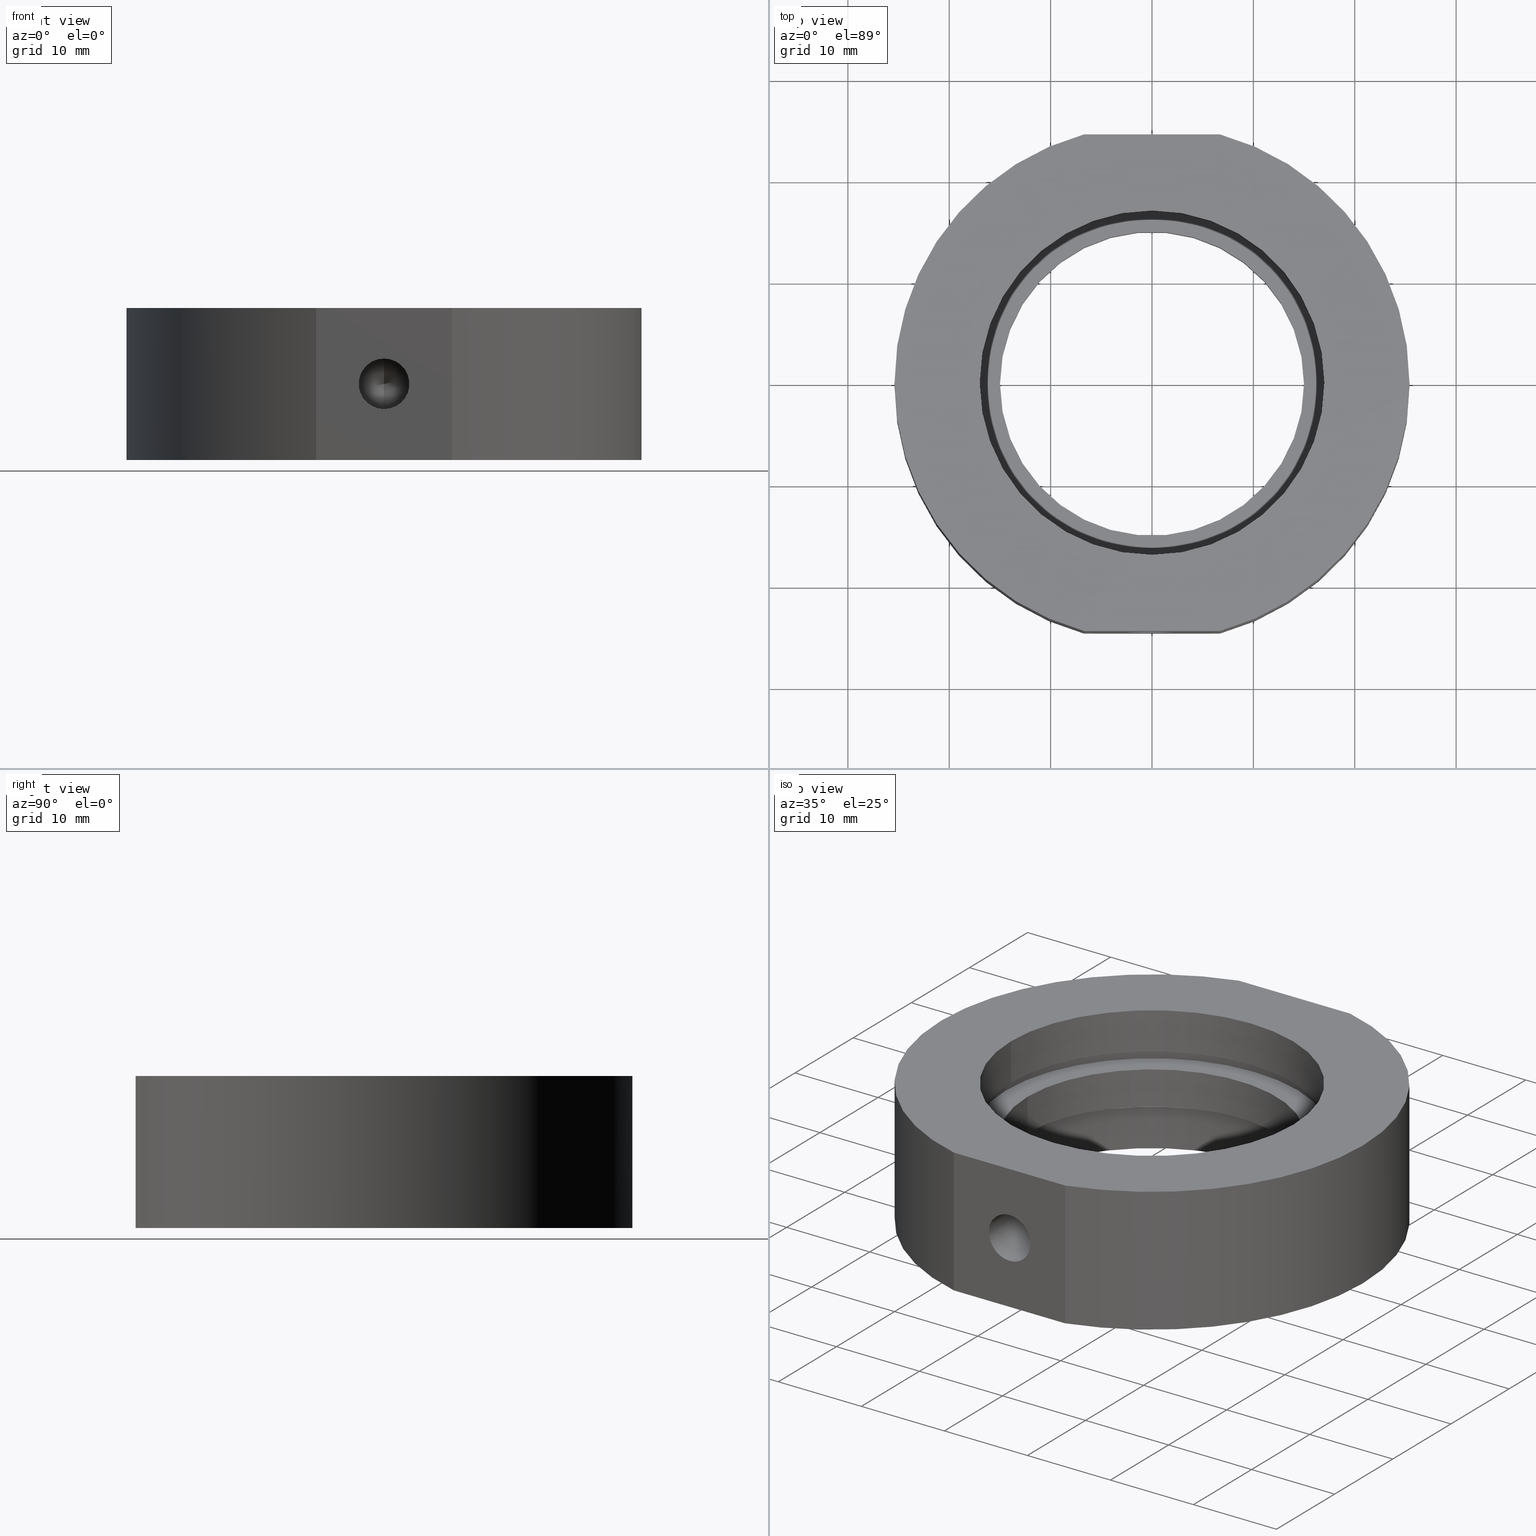
[diagram: canonical four-view strip — front | top / right | iso, engineering-drawing reading convention]
A machine part, canonical four-view strip (front | top / right | iso — engineering-drawing reading convention). The complete STEP part file that produces these views, byte-faithful:
ISO-10303-21;
HEADER;
FILE_DESCRIPTION (( 'STEP AP203' ),
    '1' );
FILE_NAME ('502013.STEP',
    '2019-09-04T06:55:42',
    ( '' ),
    ( '' ),
    'SwSTEP 2.0',
    'SolidWorks 2016',
    '' );
FILE_SCHEMA (( 'CONFIG_CONTROL_DESIGN' ));
ENDSEC;

DATA;
#1 = APPROVAL_PERSON_ORGANIZATION ( #672, #594, #201 ) ;
#2 = EDGE_CURVE ( 'NONE', #18, #840, #479, .T. ) ;
#3 = FACE_BOUND ( 'NONE', #716, .T. ) ;
#4 = CARTESIAN_POINT ( 'NONE',  ( 6.071532165918824800E-015, 24.50000000000000000, 1.649999999999989900 ) ) ;
#5 = LINE ( 'NONE', #468, #196 ) ;
#6 = AXIS2_PLACEMENT_3D ( 'NONE', #294, #819, #522 ) ;
#7 = ORIENTED_EDGE ( 'NONE', *, *, #954, .F. ) ;
#8 = CARTESIAN_POINT ( 'NONE',  ( 0.0000000000000000000, 0.0000000000000000000, -31.93906810035839800 ) ) ;
#9 = DIRECTION ( 'NONE',  ( -1.000000000000000000, 0.0000000000000000000, 1.020425574104004400E-016 ) ) ;
#10 = AXIS2_PLACEMENT_3D ( 'NONE', #860, #414, #200 ) ;
#11 = CARTESIAN_POINT ( 'NONE',  ( 2.992922652324802700E-015, 0.0000000000000000000, -7.500000000000000000 ) ) ;
#12 = COORDINATED_UNIVERSAL_TIME_OFFSET ( 8, 0, .AHEAD. ) ;
#13 = FACE_BOUND ( 'NONE', #258, .T. ) ;
#14 = MANIFOLD_SOLID_BREP ( 'M6 ���ƿ�2', #456 ) ;
#15 = FACE_OUTER_BOUND ( 'NONE', #38, .T. ) ;
#16 = ORIENTED_EDGE ( 'NONE', *, *, #762, .F. ) ;
#17 = VERTEX_POINT ( 'NONE', #379 ) ;
#18 = VERTEX_POINT ( 'NONE', #91 ) ;
#19 = ADVANCED_FACE ( 'NONE', ( #24 ), #76, .F. ) ;
#20 = CC_DESIGN_DATE_AND_TIME_ASSIGNMENT ( #336, #123, ( #227 ) ) ;
#21 = ADVANCED_FACE ( 'NONE', ( #341 ), #727, .F. ) ;
#22 = DIRECTION ( 'NONE',  ( -1.000000000000000000, 0.0000000000000000000, 1.365923996832131600E-016 ) ) ;
#23 = CYLINDRICAL_SURFACE ( 'NONE', #651, 1.649999999999994400 ) ;
#24 = FACE_OUTER_BOUND ( 'NONE', #212, .T. ) ;
#25 = DIRECTION ( 'NONE',  ( -1.224646799147350500E-016, -0.0000000000000000000, -1.000000000000000000 ) ) ;
#26 = ORIENTED_EDGE ( 'NONE', *, *, #662, .T. ) ;
#27 = ADVANCED_FACE ( 'NONE', ( #630 ), #397, .F. ) ;
#28 = DIRECTION ( 'NONE',  ( -1.224646799147350500E-016, -0.0000000000000000000, -1.000000000000000000 ) ) ;
#29 = DIRECTION ( 'NONE',  ( -1.224646799147350500E-016, -0.0000000000000000000, -1.000000000000000000 ) ) ;
#30 = DIRECTION ( 'NONE',  ( -1.224646799147350500E-016, -0.0000000000000000000, -1.000000000000000000 ) ) ;
#31 = AXIS2_PLACEMENT_3D ( 'NONE', #387, #457, #899 ) ;
#32 = COORDINATED_UNIVERSAL_TIME_OFFSET ( 8, 0, .AHEAD. ) ;
#33 = CIRCLE ( 'NONE', #540, 1.649999999999989900 ) ;
#34 = CARTESIAN_POINT ( 'NONE',  ( 2.992922652324802700E-015, 0.0000000000000000000, -7.500000000000000000 ) ) ;
#35 = ORIENTED_EDGE ( 'NONE', *, *, #211, .T. ) ;
#36 = EDGE_LOOP ( 'NONE', ( #89, #831 ) ) ;
#37 = DIRECTION ( 'NONE',  ( 0.0000000000000000000, -0.5150380749100554900, -0.8571673007021115600 ) ) ;
#38 = EDGE_LOOP ( 'NONE', ( #282, #172, #304, #632 ) ) ;
#39 = DIRECTION ( 'NONE',  ( -1.224646799147350500E-016, -0.0000000000000000000, -1.000000000000000000 ) ) ;
#40 = DIRECTION ( 'NONE',  ( 1.000000000000000000, 0.0000000000000000000, -1.224646799147350500E-016 ) ) ;
#41 = PLANE ( 'NONE',  #918 ) ;
#42 = DIRECTION ( 'NONE',  ( -1.224646799147350500E-016, -0.0000000000000000000, -1.000000000000000000 ) ) ;
#43 = LOCAL_TIME ( 14, 55, 42.00000000000000000, #275 ) ;
#44 = CIRCLE ( 'NONE', #415, 15.00000000000000000 ) ;
#45 = VECTOR ( 'NONE', #246, 1000.000000000000000 ) ;
#46 = EDGE_LOOP ( 'NONE', ( #188, #841, #443, #367, #112 ) ) ;
#47 = CARTESIAN_POINT ( 'NONE',  ( 17.60000000000000500, 2.155378366499341600E-015, 2.999999999999993300 ) ) ;
#48 = EDGE_CURVE ( 'NONE', #676, #782, #68, .T. ) ;
#49 = PERSON_AND_ORGANIZATION_ROLE ( 'creator' ) ;
#50 = AXIS2_PLACEMENT_3D ( 'NONE', #230, #753, #303 ) ;
#51 = CARTESIAN_POINT ( 'NONE',  ( 0.0000000000000000000, 0.0000000000000000000, -31.93906810035839800 ) ) ;
#52 = APPROVAL_ROLE ( '' ) ;
#53 = CARTESIAN_POINT ( 'NONE',  ( -17.59999999999999800, 0.0000000000000000000, 2.999999999999997800 ) ) ;
#54 = AXIS2_PLACEMENT_3D ( 'NONE', #444, #692, #9 ) ;
#55 = APPROVAL_DATE_TIME ( #513, #594 ) ;
#56 = PERSON_AND_ORGANIZATION_ROLE ( 'classification_officer' ) ;
#57 = LINE ( 'NONE', #626, #515 ) ;
#58 = FACE_OUTER_BOUND ( 'NONE', #46, .T. ) ;
#59 = ORIENTED_EDGE ( 'NONE', *, *, #547, .F. ) ;
#60 = APPROVAL_STATUS ( 'not_yet_approved' ) ;
#61 = ORIENTED_EDGE ( 'NONE', *, *, #659, .T. ) ;
#62 = EDGE_LOOP ( 'NONE', ( #69, #832, #741 ) ) ;
#63 = APPROVAL_STATUS ( 'not_yet_approved' ) ;
#64 = ADVANCED_BREP_SHAPE_REPRESENTATION ( '502013', ( #14, #129 ), #266 ) ;
#65 = LINE ( 'NONE', #779, #533 ) ;
#66 = PRODUCT_DEFINITION_FORMATION_WITH_SPECIFIED_SOURCE ( '�κ�', '', #346, .NOT_KNOWN. ) ;
#67 = CONICAL_SURFACE ( 'NONE', #354, 2.499999999999997800, 1.029744258676653000 ) ;
#68 = CIRCLE ( 'NONE', #54, 16.99999999999999600 ) ;
#69 = ORIENTED_EDGE ( 'NONE', *, *, #857, .F. ) ;
#70 = ORIENTED_EDGE ( 'NONE', *, *, #795, .F. ) ;
#71 = CARTESIAN_POINT ( 'NONE',  ( -17.60000000000000100, 0.0000000000000000000, -31.93906810035839800 ) ) ;
#72 = DIRECTION ( 'NONE',  ( -1.224646799147350500E-016, -0.0000000000000000000, -1.000000000000000000 ) ) ;
#73 = LOCAL_TIME ( 14, 55, 42.00000000000000000, #570 ) ;
#74 = EDGE_CURVE ( 'NONE', #610, #715, #526, .T. ) ;
#75 = DIRECTION ( 'NONE',  ( -1.000000000000000000, 0.0000000000000000000, 0.0000000000000000000 ) ) ;
#76 = CYLINDRICAL_SURFACE ( 'NONE', #510, 17.60000000000000100 ) ;
#77 = CC_DESIGN_PERSON_AND_ORGANIZATION_ASSIGNMENT ( #215, #207, ( #192 ) ) ;
#78 = ORIENTED_EDGE ( 'NONE', *, *, #322, .F. ) ;
#79 = ORIENTED_EDGE ( 'NONE', *, *, #184, .T. ) ;
#80 = EDGE_LOOP ( 'NONE', ( #537, #433, #267, #619 ) ) ;
#81 = AXIS2_PLACEMENT_3D ( 'NONE', #190, #106, #103 ) ;
#82 = ADVANCED_FACE ( 'NONE', ( #135, #289 ), #543, .F. ) ;
#83 = CARTESIAN_POINT ( 'NONE',  ( 6.701492371106626300, -24.49999999999999300, -31.93906810035839800 ) ) ;
#84 = FACE_OUTER_BOUND ( 'NONE', #408, .T. ) ;
#85 = CIRCLE ( 'NONE', #520, 17.00000000000000000 ) ;
#86 = CARTESIAN_POINT ( 'NONE',  ( -6.701492371106626300, 24.49999999999999300, -31.93906810035839800 ) ) ;
#87 = EDGE_CURVE ( 'NONE', #770, #256, #5, .T. ) ;
#88 = LINE ( 'NONE', #541, #45 ) ;
#89 = ORIENTED_EDGE ( 'NONE', *, *, #48, .T. ) ;
#90 = ORIENTED_EDGE ( 'NONE', *, *, #762, .T. ) ;
#91 = CARTESIAN_POINT ( 'NONE',  ( -6.701492371106592600, -24.50000000000000000, -7.499999999999999100 ) ) ;
#92 = CARTESIAN_POINT ( 'NONE',  ( 4.156337111514785400E-015, 0.0000000000000000000, 1.999999999999994900 ) ) ;
#93 = AXIS2_PLACEMENT_3D ( 'NONE', #669, #150, #674 ) ;
#94 = DIRECTION ( 'NONE',  ( -1.224646799147350500E-016, -0.0000000000000000000, -1.000000000000000000 ) ) ;
#95 = CALENDAR_DATE ( 2019, 4, 9 ) ;
#96 = CARTESIAN_POINT ( 'NONE',  ( 17.00000000000000400, 2.081899558550500300E-015, -3.000000000000001300 ) ) ;
#97 = FACE_OUTER_BOUND ( 'NONE', #420, .T. ) ;
#98 = DIRECTION ( 'NONE',  ( -1.000000000000000000, 0.0000000000000000000, 1.156482317317871500E-016 ) ) ;
#99 = EDGE_LOOP ( 'NONE', ( #675, #719, #539, #149 ) ) ;
#100 = EDGE_CURVE ( 'NONE', #689, #665, #88, .T. ) ;
#101 = ORIENTED_EDGE ( 'NONE', *, *, #854, .F. ) ;
#102 = CARTESIAN_POINT ( 'NONE',  ( -16.99999999999999300, 0.0000000000000000000, 2.999999999999997800 ) ) ;
#103 = DIRECTION ( 'NONE',  ( -1.000000000000000000, 0.0000000000000000000, 1.232047923278982200E-016 ) ) ;
#104 = DESIGN_CONTEXT ( 'detailed design', #863, 'design' ) ;
#105 = CARTESIAN_POINT ( 'NONE',  ( 0.0000000000000000000, 0.0000000000000000000, -31.93906810035839800 ) ) ;
#106 = DIRECTION ( 'NONE',  ( -1.224646799147350500E-016, -0.0000000000000000000, -1.000000000000000000 ) ) ;
#107 = CIRCLE ( 'NONE', #446, 1.649999999999998600 ) ;
#108 = CARTESIAN_POINT ( 'NONE',  ( 4.829892851045827200E-015, 0.0000000000000000000, 7.499999999999992900 ) ) ;
#109 = CIRCLE ( 'NONE', #645, 17.60000000000000100 ) ;
#110 = FACE_OUTER_BOUND ( 'NONE', #657, .T. ) ;
#111 = ORIENTED_EDGE ( 'NONE', *, *, #127, .F. ) ;
#112 = ORIENTED_EDGE ( 'NONE', *, *, #254, .F. ) ;
#113 = DIRECTION ( 'NONE',  ( -1.000000000000000000, 0.0000000000000000000, 0.0000000000000000000 ) ) ;
#114 = ORIENTED_EDGE ( 'NONE', *, *, #525, .T. ) ;
#115 = PRODUCT_RELATED_PRODUCT_CATEGORY ( 'detail', '', ( #192 ) ) ;
#116 = CARTESIAN_POINT ( 'NONE',  ( 2.992922652324802700E-015, 0.0000000000000000000, -7.500000000000000000 ) ) ;
#117 = DIRECTION ( 'NONE',  ( 0.0000000000000000000, 0.0000000000000000000, 1.000000000000000000 ) ) ;
#118 = AXIS2_PLACEMENT_3D ( 'NONE', #370, #290, #743 ) ;
#119 = PERSON_AND_ORGANIZATION_ROLE ( 'design_supplier' ) ;
#120 = CARTESIAN_POINT ( 'NONE',  ( 17.60000000000000500, 0.0000000000000000000, 1.999999999999997300 ) ) ;
#121 = CALENDAR_DATE ( 2019, 4, 9 ) ;
#122 = APPROVAL_PERSON_ORGANIZATION ( #157, #281, #52 ) ;
#123 = DATE_TIME_ROLE ( 'creation_date' ) ;
#124 = CYLINDRICAL_SURFACE ( 'NONE', #291, 2.499999999999998700 ) ;
#125 = ORIENTED_EDGE ( 'NONE', *, *, #284, .T. ) ;
#126 = VERTEX_POINT ( 'NONE', #319 ) ;
#127 = EDGE_CURVE ( 'NONE', #170, #941, #768, .T. ) ;
#128 = APPROVAL_ROLE ( '' ) ;
#129 = AXIS2_PLACEMENT_3D ( 'NONE', #508, #117, #274 ) ;
#130 = DATE_TIME_ROLE ( 'classification_date' ) ;
#131 = CARTESIAN_POINT ( 'NONE',  ( 4.278801791429520600E-015, 0.0000000000000000000, 2.999999999999995600 ) ) ;
#132 = AXIS2_PLACEMENT_3D ( 'NONE', #855, #930, #487 ) ;
#133 = CYLINDRICAL_SURFACE ( 'NONE', #369, 17.60000000000000100 ) ;
#134 = CIRCLE ( 'NONE', #6, 17.60000000000000100 ) ;
#135 = FACE_OUTER_BOUND ( 'NONE', #952, .T. ) ;
#136 = VERTEX_POINT ( 'NONE', #4 ) ;
#137 = VERTEX_POINT ( 'NONE', #820 ) ;
#138 = VERTEX_POINT ( 'NONE', #224 ) ;
#139 = EDGE_CURVE ( 'NONE', #782, #576, #573, .T. ) ;
#140 = EDGE_CURVE ( 'NONE', #344, #941, #814, .T. ) ;
#141 = DIRECTION ( 'NONE',  ( -1.224646799147350500E-016, -0.0000000000000000000, -1.000000000000000000 ) ) ;
#142 = DATE_AND_TIME ( #178, #476 ) ;
#143 = AXIS2_PLACEMENT_3D ( 'NONE', #243, #28, #763 ) ;
#144 = FACE_OUTER_BOUND ( 'NONE', #851, .T. ) ;
#145 = VECTOR ( 'NONE', #340, 1000.000000000000000 ) ;
#146 = DIRECTION ( 'NONE',  ( -0.0000000000000000000, 1.000000000000000000, -0.0000000000000000000 ) ) ;
#147 = ORIENTED_EDGE ( 'NONE', *, *, #889, .T. ) ;
#148 = EDGE_LOOP ( 'NONE', ( #852, #644, #550, #59 ) ) ;
#149 = ORIENTED_EDGE ( 'NONE', *, *, #202, .F. ) ;
#150 = DIRECTION ( 'NONE',  ( -0.0000000000000000000, 1.000000000000000000, -0.0000000000000000000 ) ) ;
#151 = AXIS2_PLACEMENT_3D ( 'NONE', #424, #421, #195 ) ;
#152 = DIRECTION ( 'NONE',  ( -1.000000000000000000, 0.0000000000000000000, 0.0000000000000000000 ) ) ;
#153 = APPROVAL_DATE_TIME ( #799, #517 ) ;
#154 = CARTESIAN_POINT ( 'NONE',  ( 15.00000000000000400, 1.836970198721029600E-015, 1.999999999999993100 ) ) ;
#155 = EDGE_CURVE ( 'NONE', #435, #170, #373, .T. ) ;
#156 = ADVANCED_FACE ( 'NONE', ( #110 ), #441, .F. ) ;
#157 = PERSON_AND_ORGANIZATION ( #268, #384 ) ;
#158 = CYLINDRICAL_SURFACE ( 'NONE', #401, 16.99999999999999600 ) ;
#159 = ORIENTED_EDGE ( 'NONE', *, *, #140, .T. ) ;
#160 = DIRECTION ( 'NONE',  ( -0.0000000000000000000, 1.000000000000000000, -0.0000000000000000000 ) ) ;
#161 = ORIENTED_EDGE ( 'NONE', *, *, #445, .F. ) ;
#162 = PLANE ( 'NONE',  #722 ) ;
#163 = CC_DESIGN_APPROVAL ( #742, ( #639 ) ) ;
#164 = DIRECTION ( 'NONE',  ( -0.0000000000000000000, -1.000000000000000000, -0.0000000000000000000 ) ) ;
#165 = DIRECTION ( 'NONE',  ( -1.224646799147350500E-016, 0.0000000000000000000, -1.000000000000000000 ) ) ;
#166 = CALENDAR_DATE ( 2019, 4, 9 ) ;
#167 = LINE ( 'NONE', #587, #571 ) ;
#168 = DIRECTION ( 'NONE',  ( -1.000000000000000000, 0.0000000000000000000, 1.156482317317871500E-016 ) ) ;
#169 = CIRCLE ( 'NONE', #404, 15.00000000000000000 ) ;
#170 = VERTEX_POINT ( 'NONE', #261 ) ;
#171 = ADVANCED_FACE ( 'NONE', ( #839 ), #940, .F. ) ;
#172 = ORIENTED_EDGE ( 'NONE', *, *, #795, .T. ) ;
#173 = CARTESIAN_POINT ( 'NONE',  ( -33.15197265346817100, 24.50000000000000000, 7.499999999999999100 ) ) ;
#174 = DIRECTION ( 'NONE',  ( -0.0000000000000000000, -1.000000000000000000, -0.0000000000000000000 ) ) ;
#175 = AXIS2_PLACEMENT_3D ( 'NONE', #391, #164, #460 ) ;
#176 = DIRECTION ( 'NONE',  ( -1.224646799147350500E-016, 0.0000000000000000000, -1.000000000000000000 ) ) ;
#177 = DIRECTION ( 'NONE',  ( 1.224646799147350500E-016, 0.0000000000000000000, 1.000000000000000000 ) ) ;
#178 = CALENDAR_DATE ( 2019, 4, 9 ) ;
#179 = CARTESIAN_POINT ( 'NONE',  ( 15.00000000000000400, 1.836970198721029600E-015, -2.000000000000003600 ) ) ;
#180 = CALENDAR_DATE ( 2019, 4, 9 ) ;
#181 = FACE_OUTER_BOUND ( 'NONE', #739, .T. ) ;
#182 = DIRECTION ( 'NONE',  ( -1.224646799147350500E-016, -0.0000000000000000000, -1.000000000000000000 ) ) ;
#183 = ORIENTED_EDGE ( 'NONE', *, *, #202, .T. ) ;
#184 = EDGE_CURVE ( 'NONE', #137, #701, #617, .T. ) ;
#185 = ORIENTED_EDGE ( 'NONE', *, *, #2, .T. ) ;
#186 = ORIENTED_EDGE ( 'NONE', *, *, #307, .F. ) ;
#187 = CARTESIAN_POINT ( 'NONE',  ( 0.0000000000000000000, 0.0000000000000000000, -31.93906810035839800 ) ) ;
#188 = ORIENTED_EDGE ( 'NONE', *, *, #563, .F. ) ;
#189 = CARTESIAN_POINT ( 'NONE',  ( 17.00000000000000400, 0.0000000000000000000, -7.500000000000003600 ) ) ;
#190 = CARTESIAN_POINT ( 'NONE',  ( 3.666478391855845600E-015, 0.0000000000000000000, -2.000000000000001800 ) ) ;
#191 = AXIS2_PLACEMENT_3D ( 'NONE', #8, #448, #844 ) ;
#192 = PRODUCT ( '502013', '502013', '', ( #654 ) ) ;
#193 = DIRECTION ( 'NONE',  ( -1.000000000000000000, 0.0000000000000000000, 1.020425574104004100E-016 ) ) ;
#194 = FACE_BOUND ( 'NONE', #210, .T. ) ;
#195 = DIRECTION ( 'NONE',  ( -1.000000000000000000, 0.0000000000000000000, 1.232047923278982200E-016 ) ) ;
#196 = VECTOR ( 'NONE', #623, 1000.000000000000000 ) ;
#197 = ORIENTED_EDGE ( 'NONE', *, *, #271, .T. ) ;
#198 = ORIENTED_EDGE ( 'NONE', *, *, #631, .T. ) ;
#199 = CC_DESIGN_PERSON_AND_ORGANIZATION_ASSIGNMENT ( #755, #363, ( #227 ) ) ;
#200 = DIRECTION ( 'NONE',  ( -1.000000000000000000, 0.0000000000000000000, 1.232047923278982200E-016 ) ) ;
#201 = APPROVAL_ROLE ( '' ) ;
#202 = EDGE_CURVE ( 'NONE', #840, #551, #463, .T. ) ;
#203 = DIRECTION ( 'NONE',  ( 0.0000000000000000000, 0.0000000000000000000, 1.000000000000000000 ) ) ;
#204 = PLANE ( 'NONE',  #485 ) ;
#205 = COORDINATED_UNIVERSAL_TIME_OFFSET ( 8, 0, .AHEAD. ) ;
#206 = PERSON_AND_ORGANIZATION ( #268, #384 ) ;
#207 = PERSON_AND_ORGANIZATION_ROLE ( 'design_owner' ) ;
#208 = CIRCLE ( 'NONE', #585, 17.00000000000000000 ) ;
#209 = VERTEX_POINT ( 'NONE', #703 ) ;
#210 = EDGE_LOOP ( 'NONE', ( #330, #560 ) ) ;
#211 = EDGE_CURVE ( 'NONE', #126, #442, #714, .T. ) ;
#212 = EDGE_LOOP ( 'NONE', ( #377, #345, #159, #529 ) ) ;
#213 = DIRECTION ( 'NONE',  ( -1.000000000000000000, 0.0000000000000000000, 1.232047923278982200E-016 ) ) ;
#214 = AXIS2_PLACEMENT_3D ( 'NONE', #637, #565, #850 ) ;
#215 = PERSON_AND_ORGANIZATION ( #268, #384 ) ;
#216 = CARTESIAN_POINT ( 'NONE',  ( -6.701492371106589900, 24.50000000000000000, 7.500000000000000000 ) ) ;
#217 = CIRCLE ( 'NONE', #944, 16.99999999999999600 ) ;
#218 = VECTOR ( 'NONE', #914, 1000.000000000000000 ) ;
#219 = EDGE_LOOP ( 'NONE', ( #114, #233 ) ) ;
#220 = CARTESIAN_POINT ( 'NONE',  ( 6.701492371106600600, 24.50000000000000000, 7.500000000000000000 ) ) ;
#221 = CARTESIAN_POINT ( 'NONE',  ( 17.60000000000000100, 2.155378366499341600E-015, -31.93906810035839800 ) ) ;
#222 = AXIS2_PLACEMENT_3D ( 'NONE', #601, #670, #381 ) ;
#223 = CARTESIAN_POINT ( 'NONE',  ( -16.99999999999999300, 0.0000000000000000000, 7.500000000000001800 ) ) ;
#224 = CARTESIAN_POINT ( 'NONE',  ( -6.701492371106589900, -24.50000000000000000, 7.500000000000000000 ) ) ;
#225 = EDGE_CURVE ( 'NONE', #656, #126, #169, .T. ) ;
#226 = DATE_AND_TIME ( #867, #847 ) ;
#227 = PRODUCT_DEFINITION ( 'δ֪', '', #66, #830 ) ;
#228 = COORDINATED_UNIVERSAL_TIME_OFFSET ( 8, 0, .AHEAD. ) ;
#229 = CIRCLE ( 'NONE', #894, 2.499999999999999100 ) ;
#230 = CARTESIAN_POINT ( 'NONE',  ( 4.829892851045827200E-015, 0.0000000000000000000, 7.499999999999992900 ) ) ;
#231 = ORIENTED_EDGE ( 'NONE', *, *, #184, .F. ) ;
#232 = ORIENTED_EDGE ( 'NONE', *, *, #760, .F. ) ;
#233 = ORIENTED_EDGE ( 'NONE', *, *, #322, .T. ) ;
#234 = ORIENTED_EDGE ( 'NONE', *, *, #74, .F. ) ;
#235 = DIRECTION ( 'NONE',  ( -1.224646799147350500E-016, -0.0000000000000000000, -1.000000000000000000 ) ) ;
#236 = EDGE_CURVE ( 'NONE', #757, #931, #861, .T. ) ;
#237 = ADVANCED_FACE ( 'NONE', ( #58, #431 ), #41, .F. ) ;
#238 = AXIS2_PLACEMENT_3D ( 'NONE', #480, #555, #784 ) ;
#239 = CIRCLE ( 'NONE', #786, 25.39999999999999900 ) ;
#240 = VECTOR ( 'NONE', #72, 1000.000000000000000 ) ;
#241 = ADVANCED_FACE ( 'NONE', ( #312 ), #791, .F. ) ;
#242 = LINE ( 'NONE', #358, #265 ) ;
#243 = CARTESIAN_POINT ( 'NONE',  ( 0.0000000000000000000, 0.0000000000000000000, -31.93906810035839800 ) ) ;
#244 = EDGE_LOOP ( 'NONE', ( #862, #759 ) ) ;
#245 = VERTEX_POINT ( 'NONE', #179 ) ;
#246 = DIRECTION ( 'NONE',  ( 1.224646799147350500E-016, 0.0000000000000000000, 1.000000000000000000 ) ) ;
#247 = EDGE_CURVE ( 'NONE', #137, #610, #749, .T. ) ;
#248 = APPROVAL ( #60, 'δָ��' ) ;
#249 = CARTESIAN_POINT ( 'NONE',  ( 25.40000000000000200, 0.0000000000000000000, 7.499999999999995600 ) ) ;
#250 = CARTESIAN_POINT ( 'NONE',  ( 4.278801791429520600E-015, 0.0000000000000000000, 2.999999999999995600 ) ) ;
#251 = CARTESIAN_POINT ( 'NONE',  ( 4.156337111514785400E-015, 0.0000000000000000000, 1.999999999999994900 ) ) ;
#252 = ADVANCED_FACE ( 'NONE', ( #546 ), #124, .F. ) ;
#253 = PERSON_AND_ORGANIZATION ( #268, #384 ) ;
#254 = EDGE_CURVE ( 'NONE', #356, #481, #849, .T. ) ;
#255 = LINE ( 'NONE', #864, #828 ) ;
#256 = VERTEX_POINT ( 'NONE', #924 ) ;
#257 = ORIENTED_EDGE ( 'NONE', *, *, #271, .F. ) ;
#258 = EDGE_LOOP ( 'NONE', ( #928, #161 ) ) ;
#259 = DIRECTION ( 'NONE',  ( 1.049727191138617800E-016, 0.5150380749100552700, -0.8571673007021116700 ) ) ;
#260 = ORIENTED_EDGE ( 'NONE', *, *, #305, .T. ) ;
#261 = CARTESIAN_POINT ( 'NONE',  ( 17.60000000000000500, 2.155378366499341600E-015, 1.999999999999992700 ) ) ;
#262 = DIRECTION ( 'NONE',  ( -1.224646799147350500E-016, -0.0000000000000000000, -1.000000000000000000 ) ) ;
#263 = FACE_OUTER_BOUND ( 'NONE', #758, .T. ) ;
#264 = LINE ( 'NONE', #512, #406 ) ;
#265 = VECTOR ( 'NONE', #866, 1000.000000000000000 ) ;
#266 =( GEOMETRIC_REPRESENTATION_CONTEXT ( 3 ) GLOBAL_UNCERTAINTY_ASSIGNED_CONTEXT ( ( #805 ) ) GLOBAL_UNIT_ASSIGNED_CONTEXT ( ( #721, #949, #734 ) ) REPRESENTATION_CONTEXT ( 'NONE', 'WORKASPACE' ) );
#267 = ORIENTED_EDGE ( 'NONE', *, *, #514, .F. ) ;
#268 = PERSON ( 'δָ��', 'δָ��', 'δָ��', ('δָ��'), ('δָ��'), ('δָ��') ) ;
#269 = CARTESIAN_POINT ( 'NONE',  ( 0.0000000000000000000, 0.0000000000000000000, -31.93906810035839800 ) ) ;
#270 = ORIENTED_EDGE ( 'NONE', *, *, #139, .F. ) ;
#271 = EDGE_CURVE ( 'NONE', #280, #342, #697, .T. ) ;
#272 = APPROVAL_ROLE ( '' ) ;
#273 = CALENDAR_DATE ( 2019, 4, 9 ) ;
#274 = DIRECTION ( 'NONE',  ( 1.000000000000000000, 0.0000000000000000000, 0.0000000000000000000 ) ) ;
#275 = COORDINATED_UNIVERSAL_TIME_OFFSET ( 8, 0, .AHEAD. ) ;
#276 = CARTESIAN_POINT ( 'NONE',  ( -33.15197265346817100, -24.50000000000000000, -41.50000000000002100 ) ) ;
#277 = LINE ( 'NONE', #505, #902 ) ;
#278 = ORIENTED_EDGE ( 'NONE', *, *, #2, .F. ) ;
#279 = EDGE_LOOP ( 'NONE', ( #509, #633, #26, #454 ) ) ;
#280 = VERTEX_POINT ( 'NONE', #96 ) ;
#281 = APPROVAL ( #63, 'δָ��' ) ;
#282 = ORIENTED_EDGE ( 'NONE', *, *, #305, .F. ) ;
#283 = DATE_TIME_ROLE ( 'creation_date' ) ;
#284 = EDGE_CURVE ( 'NONE', #906, #576, #417, .T. ) ;
#285 = CARTESIAN_POINT ( 'NONE',  ( 15.00000000000000400, 0.0000000000000000000, -2.000000000000004400 ) ) ;
#286 = DATE_AND_TIME ( #477, #826 ) ;
#287 = APPROVAL_ROLE ( '' ) ;
#288 = CIRCLE ( 'NONE', #818, 2.499999999999997800 ) ;
#289 = FACE_BOUND ( 'NONE', #388, .T. ) ;
#290 = DIRECTION ( 'NONE',  ( -0.0000000000000000000, 1.000000000000000000, -0.0000000000000000000 ) ) ;
#291 = AXIS2_PLACEMENT_3D ( 'NONE', #922, #557, #635 ) ;
#292 = ORIENTED_EDGE ( 'NONE', *, *, #400, .F. ) ;
#293 = DIRECTION ( 'NONE',  ( 0.0000000000000000000, 0.0000000000000000000, -1.000000000000000000 ) ) ;
#294 = CARTESIAN_POINT ( 'NONE',  ( 3.666478391855845600E-015, 0.0000000000000000000, -2.000000000000001800 ) ) ;
#295 = EDGE_CURVE ( 'NONE', #256, #136, #595, .T. ) ;
#296 = DIRECTION ( 'NONE',  ( -1.000000000000000000, 0.0000000000000000000, 1.224646799147350500E-016 ) ) ;
#297 = AXIS2_PLACEMENT_3D ( 'NONE', #528, #374, #608 ) ;
#298 = DATE_AND_TIME ( #166, #627 ) ;
#299 = CIRCLE ( 'NONE', #698, 17.00000000000000000 ) ;
#300 = CARTESIAN_POINT ( 'NONE',  ( 0.0000000000000000000, 0.0000000000000000000, -31.93906810035839800 ) ) ;
#301 = VECTOR ( 'NONE', #699, 1000.000000000000000 ) ;
#302 = ORIENTED_EDGE ( 'NONE', *, *, #501, .T. ) ;
#303 = DIRECTION ( 'NONE',  ( -1.000000000000000000, 0.0000000000000000000, 1.365923996832131600E-016 ) ) ;
#304 = ORIENTED_EDGE ( 'NONE', *, *, #400, .T. ) ;
#305 = EDGE_CURVE ( 'NONE', #549, #256, #913, .T. ) ;
#306 = CARTESIAN_POINT ( 'NONE',  ( 5.204170427930421300E-015, -24.50000000000000000, -2.499999999999999100 ) ) ;
#307 = EDGE_CURVE ( 'NONE', #483, #953, #353, .T. ) ;
#308 = APPROVAL_PERSON_ORGANIZATION ( #558, #517, #287 ) ;
#309 = FACE_OUTER_BOUND ( 'NONE', #666, .T. ) ;
#310 = VECTOR ( 'NONE', #470, 1000.000000000000000 ) ;
#311 = DIRECTION ( 'NONE',  ( 1.224646799147350500E-016, 0.0000000000000000000, 1.000000000000000000 ) ) ;
#312 = FACE_OUTER_BOUND ( 'NONE', #678, .T. ) ;
#313 = ORIENTED_EDGE ( 'NONE', *, *, #473, .F. ) ;
#314 = ORIENTED_EDGE ( 'NONE', *, *, #886, .F. ) ;
#315 = EDGE_LOOP ( 'NONE', ( #871, #658, #607, #794 ) ) ;
#316 = ORIENTED_EDGE ( 'NONE', *, *, #459, .F. ) ;
#317 = CC_DESIGN_DATE_AND_TIME_ASSIGNMENT ( #858, #283, ( #389 ) ) ;
#318 = CARTESIAN_POINT ( 'NONE',  ( 5.204170427930421300E-015, -24.50000000000000000, 0.0000000000000000000 ) ) ;
#319 = CARTESIAN_POINT ( 'NONE',  ( -14.99999999999999600, 0.0000000000000000000, 1.999999999999996700 ) ) ;
#320 = ADVANCED_FACE ( 'NONE', ( #326 ), #450, .F. ) ;
#321 = DIRECTION ( 'NONE',  ( -1.224646799147350500E-016, -0.0000000000000000000, -1.000000000000000000 ) ) ;
#322 = EDGE_CURVE ( 'NONE', #435, #344, #870, .T. ) ;
#323 = COORDINATED_UNIVERSAL_TIME_OFFSET ( 8, 0, .AHEAD. ) ;
#324 = DIRECTION ( 'NONE',  ( -1.224646799147350500E-016, -0.0000000000000000000, -1.000000000000000000 ) ) ;
#325 = CONICAL_SURFACE ( 'NONE', #31, 1.649999999999998600, 1.029744258676653200 ) ;
#326 = FACE_OUTER_BOUND ( 'NONE', #700, .T. ) ;
#327 = CARTESIAN_POINT ( 'NONE',  ( 4.829892851045828800E-015, 0.0000000000000000000, 7.500000000000000000 ) ) ;
#328 = ORIENTED_EDGE ( 'NONE', *, *, #671, .F. ) ;
#329 = ORIENTED_EDGE ( 'NONE', *, *, #100, .T. ) ;
#330 = ORIENTED_EDGE ( 'NONE', *, *, #284, .F. ) ;
#331 = DIRECTION ( 'NONE',  ( -1.000000000000000000, 0.0000000000000000000, 0.0000000000000000000 ) ) ;
#332 = DIRECTION ( 'NONE',  ( -0.0000000000000000000, -1.000000000000000000, -0.0000000000000000000 ) ) ;
#333 = CC_DESIGN_APPROVAL ( #281, ( #389 ) ) ;
#334 = DIRECTION ( 'NONE',  ( -1.000000000000000000, 0.0000000000000000000, 1.365923996832131600E-016 ) ) ;
#335 = ADVANCED_FACE ( 'NONE', ( #655, #97 ), #717, .F. ) ;
#336 = DATE_AND_TIME ( #427, #362 ) ;
#337 = CARTESIAN_POINT ( 'NONE',  ( -25.39999999999999500, 0.0000000000000000000, -7.499999999999996400 ) ) ;
#338 = AXIS2_PLACEMENT_3D ( 'NONE', #815, #371, #885 ) ;
#339 = LINE ( 'NONE', #542, #491 ) ;
#340 = DIRECTION ( 'NONE',  ( -0.0000000000000000000, 1.000000000000000000, -0.0000000000000000000 ) ) ;
#341 = FACE_OUTER_BOUND ( 'NONE', #279, .T. ) ;
#342 = VERTEX_POINT ( 'NONE', #349 ) ;
#343 = CARTESIAN_POINT ( 'NONE',  ( 5.510332127717259900E-015, -19.00000000000000400, 2.499999999999997800 ) ) ;
#344 = VERTEX_POINT ( 'NONE', #53 ) ;
#345 = ORIENTED_EDGE ( 'NONE', *, *, #525, .F. ) ;
#346 = PRODUCT ( '502013', '502013', '', ( #584 ) ) ;
#347 = DIRECTION ( 'NONE',  ( -1.000000000000000000, 0.0000000000000000000, 0.0000000000000000000 ) ) ;
#348 = APPLICATION_CONTEXT ( 'configuration controlled 3d designs of mechanical parts and assemblies' ) ;
#349 = CARTESIAN_POINT ( 'NONE',  ( 17.00000000000000400, 2.081899558550500300E-015, -7.500000000000001800 ) ) ;
#350 = EDGE_CURVE ( 'NONE', #882, #138, #242, .T. ) ;
#351 = FACE_OUTER_BOUND ( 'NONE', #892, .T. ) ;
#352 = APPLICATION_PROTOCOL_DEFINITION ( 'international standard', 'config_control_design', 1994, #806 ) ;
#353 = CIRCLE ( 'NONE', #10, 17.60000000000000100 ) ;
#354 = AXIS2_PLACEMENT_3D ( 'NONE', #380, #825, #834 ) ;
#355 = ORIENTED_EDGE ( 'NONE', *, *, #350, .T. ) ;
#356 = VERTEX_POINT ( 'NONE', #575 ) ;
#357 = PERSON_AND_ORGANIZATION_ROLE ( 'creator' ) ;
#358 = CARTESIAN_POINT ( 'NONE',  ( -33.15197265346817100, -24.50000000000000000, 7.499999999999999100 ) ) ;
#359 = AXIS2_PLACEMENT_3D ( 'NONE', #300, #822, #331 ) ;
#360 = SECURITY_CLASSIFICATION_LEVEL ( 'unclassified' ) ;
#361 = DIRECTION ( 'NONE',  ( -1.000000000000000000, 0.0000000000000000000, 1.232047923278982200E-016 ) ) ;
#362 = LOCAL_TIME ( 14, 55, 42.00000000000000000, #205 ) ;
#363 = PERSON_AND_ORGANIZATION_ROLE ( 'creator' ) ;
#364 = APPROVAL_DATE_TIME ( #286, #281 ) ;
#365 = LINE ( 'NONE', #821, #711 ) ;
#366 = EDGE_CURVE ( 'NONE', #356, #840, #255, .T. ) ;
#367 = ORIENTED_EDGE ( 'NONE', *, *, #729, .F. ) ;
#368 = ORIENTED_EDGE ( 'NONE', *, *, #843, .F. ) ;
#369 = AXIS2_PLACEMENT_3D ( 'NONE', #105, #927, #113 ) ;
#370 = CARTESIAN_POINT ( 'NONE',  ( 6.071532165918824800E-015, 24.50000000000000000, 0.0000000000000000000 ) ) ;
#371 = DIRECTION ( 'NONE',  ( -1.224646799147350500E-016, -0.0000000000000000000, -1.000000000000000000 ) ) ;
#372 = FACE_OUTER_BOUND ( 'NONE', #148, .T. ) ;
#373 = LINE ( 'NONE', #221, #643 ) ;
#374 = DIRECTION ( 'NONE',  ( -1.224646799147350500E-016, -0.0000000000000000000, -1.000000000000000000 ) ) ;
#375 = DIRECTION ( 'NONE',  ( -1.224646799147350500E-016, -0.0000000000000000000, -1.000000000000000000 ) ) ;
#376 = AXIS2_PLACEMENT_3D ( 'NONE', #524, #165, #296 ) ;
#377 = ORIENTED_EDGE ( 'NONE', *, *, #155, .F. ) ;
#378 = PRODUCT_DEFINITION_SHAPE ( 'NONE', 'NONE',  #389 ) ;
#379 = CARTESIAN_POINT ( 'NONE',  ( -16.99999999999999600, 0.0000000000000000000, -7.499999999999998200 ) ) ;
#380 = CARTESIAN_POINT ( 'NONE',  ( 5.204170427930421300E-015, -19.00000000000000400, 0.0000000000000000000 ) ) ;
#381 = DIRECTION ( 'NONE',  ( -1.000000000000000000, 0.0000000000000000000, 0.0000000000000000000 ) ) ;
#382 = PRODUCT_DEFINITION_FORMATION_WITH_SPECIFIED_SOURCE ( '�κ�', '', #192, .NOT_KNOWN. ) ;
#383 = DIRECTION ( 'NONE',  ( -1.000000000000000000, 0.0000000000000000000, 1.020425574104004100E-016 ) ) ;
#384 = ORGANIZATION ( 'δָ��', 'δָ��', '' ) ;
#385 = VECTOR ( 'NONE', #548, 1000.000000000000000 ) ;
#386 = ORIENTED_EDGE ( 'NONE', *, *, #295, .T. ) ;
#387 = CARTESIAN_POINT ( 'NONE',  ( 6.071532165918824800E-015, 19.00000000000000400, 0.0000000000000000000 ) ) ;
#388 = EDGE_LOOP ( 'NONE', ( #596, #809 ) ) ;
#389 = PRODUCT_DEFINITION ( 'δ֪', '', #382, #104 ) ;
#390 = CARTESIAN_POINT ( 'NONE',  ( 17.60000000000000100, 2.155378366499341600E-015, -31.93906810035839800 ) ) ;
#391 = CARTESIAN_POINT ( 'NONE',  ( 5.204170427930421300E-015, -24.50000000000000000, 0.0000000000000000000 ) ) ;
#392 = EDGE_CURVE ( 'NONE', #676, #906, #277, .T. ) ;
#393 = PERSON_AND_ORGANIZATION ( #268, #384 ) ;
#394 = LINE ( 'NONE', #83, #240 ) ;
#395 = CARTESIAN_POINT ( 'NONE',  ( 17.60000000000000500, 2.155378366499341600E-015, -2.000000000000004000 ) ) ;
#396 = ADVANCED_FACE ( 'NONE', ( #492, #664 ), #873, .F. ) ;
#397 = CYLINDRICAL_SURFACE ( 'NONE', #222, 17.60000000000000100 ) ;
#398 = DIRECTION ( 'NONE',  ( -1.224646799147350500E-016, -0.0000000000000000000, -1.000000000000000000 ) ) ;
#399 = ORIENTED_EDGE ( 'NONE', *, *, #225, .T. ) ;
#400 = EDGE_CURVE ( 'NONE', #455, #136, #33, .T. ) ;
#401 = AXIS2_PLACEMENT_3D ( 'NONE', #668, #235, #752 ) ;
#402 = DIRECTION ( 'NONE',  ( -1.000000000000000000, 0.0000000000000000000, 1.156482317317871500E-016 ) ) ;
#403 = DIRECTION ( 'NONE',  ( -0.0000000000000000000, 1.000000000000000000, -0.0000000000000000000 ) ) ;
#404 = AXIS2_PLACEMENT_3D ( 'NONE', #251, #640, #402 ) ;
#405 = CYLINDRICAL_SURFACE ( 'NONE', #432, 17.00000000000000000 ) ;
#406 = VECTOR ( 'NONE', #735, 1000.000000000000000 ) ;
#407 = DIRECTION ( 'NONE',  ( -1.000000000000000000, 0.0000000000000000000, 1.275531967630005200E-016 ) ) ;
#408 = EDGE_LOOP ( 'NONE', ( #808, #507, #185, #183, #792 ) ) ;
#409 = ORIENTED_EDGE ( 'NONE', *, *, #671, .T. ) ;
#410 = ORIENTED_EDGE ( 'NONE', *, *, #48, .F. ) ;
#411 = CARTESIAN_POINT ( 'NONE',  ( 6.701492371106597900, -24.50000000000000000, -7.500000000000000900 ) ) ;
#412 = DIRECTION ( 'NONE',  ( -0.0000000000000000000, -1.000000000000000000, -0.0000000000000000000 ) ) ;
#413 = CARTESIAN_POINT ( 'NONE',  ( 6.701492371106600600, -24.50000000000000000, 7.500000000000000000 ) ) ;
#414 = DIRECTION ( 'NONE',  ( -1.224646799147350500E-016, -0.0000000000000000000, -1.000000000000000000 ) ) ;
#415 = AXIS2_PLACEMENT_3D ( 'NONE', #621, #30, #98 ) ;
#416 = CIRCLE ( 'NONE', #766, 15.00000000000000000 ) ;
#417 = CIRCLE ( 'NONE', #238, 16.99999999999999600 ) ;
#418 = ORIENTED_EDGE ( 'NONE', *, *, #889, .F. ) ;
#419 = DIRECTION ( 'NONE',  ( -1.224646799147350500E-016, -0.0000000000000000000, -1.000000000000000000 ) ) ;
#420 = EDGE_LOOP ( 'NONE', ( #355, #561, #316, #574 ) ) ;
#421 = DIRECTION ( 'NONE',  ( -1.224646799147350500E-016, -0.0000000000000000000, -1.000000000000000000 ) ) ;
#422 = AXIS2_PLACEMENT_3D ( 'NONE', #598, #146, #751 ) ;
#423 = PERSON_AND_ORGANIZATION_ROLE ( 'design_owner' ) ;
#424 = CARTESIAN_POINT ( 'NONE',  ( 4.278801791429520600E-015, 0.0000000000000000000, 2.999999999999995600 ) ) ;
#425 = CARTESIAN_POINT ( 'NONE',  ( 2.992922652324802700E-015, 0.0000000000000000000, -7.500000000000000000 ) ) ;
#426 = DIRECTION ( 'NONE',  ( 0.0000000000000000000, 0.0000000000000000000, 1.000000000000000000 ) ) ;
#427 = CALENDAR_DATE ( 2019, 4, 9 ) ;
#428 = EDGE_CURVE ( 'NONE', #18, #138, #767, .T. ) ;
#429 = APPROVAL_PERSON_ORGANIZATION ( #900, #248, #272 ) ;
#430 = APPLICATION_PROTOCOL_DEFINITION ( 'international standard', 'config_control_design', 1994, #942 ) ;
#431 = FACE_BOUND ( 'NONE', #36, .T. ) ;
#432 = AXIS2_PLACEMENT_3D ( 'NONE', #488, #262, #935 ) ;
#433 = ORIENTED_EDGE ( 'NONE', *, *, #100, .F. ) ;
#434 = EDGE_LOOP ( 'NONE', ( #466, #527, #61, #904 ) ) ;
#435 = VERTEX_POINT ( 'NONE', #47 ) ;
#436 = CARTESIAN_POINT ( 'NONE',  ( 0.0000000000000000000, 0.0000000000000000000, 0.0000000000000000000 ) ) ;
#437 = CC_DESIGN_PERSON_AND_ORGANIZATION_ASSIGNMENT ( #737, #937, ( #389 ) ) ;
#438 = CARTESIAN_POINT ( 'NONE',  ( -17.59999999999999800, 0.0000000000000000000, -2.999999999999996900 ) ) ;
#439 = CIRCLE ( 'NONE', #93, 1.649999999999989900 ) ;
#440 = AXIS2_PLACEMENT_3D ( 'NONE', #276, #500, #943 ) ;
#441 = CONICAL_SURFACE ( 'NONE', #422, 1.649999999999998600, 1.029744258676653200 ) ;
#442 = VERTEX_POINT ( 'NONE', #582 ) ;
#443 = ORIENTED_EDGE ( 'NONE', *, *, #877, .F. ) ;
#444 = CARTESIAN_POINT ( 'NONE',  ( 4.829892851045828800E-015, 0.0000000000000000000, 7.500000000000000000 ) ) ;
#445 = EDGE_CURVE ( 'NONE', #342, #17, #926, .T. ) ;
#446 = AXIS2_PLACEMENT_3D ( 'NONE', #856, #921, #707 ) ;
#447 = CARTESIAN_POINT ( 'NONE',  ( 17.00000000000000000, 2.081899558550499900E-015, 2.999999999999993300 ) ) ;
#448 = DIRECTION ( 'NONE',  ( -1.224646799147350500E-016, -0.0000000000000000000, -1.000000000000000000 ) ) ;
#449 = APPROVAL_DATE_TIME ( #559, #248 ) ;
#450 = CYLINDRICAL_SURFACE ( 'NONE', #497, 15.00000000000000000 ) ;
#451 = DIRECTION ( 'NONE',  ( -1.224646799147350500E-016, -0.0000000000000000000, -1.000000000000000000 ) ) ;
#452 = ORIENTED_EDGE ( 'NONE', *, *, #445, .T. ) ;
#453 = AXIS2_PLACEMENT_3D ( 'NONE', #187, #29, #781 ) ;
#454 = ORIENTED_EDGE ( 'NONE', *, *, #392, .F. ) ;
#455 = VERTEX_POINT ( 'NONE', #934 ) ;
#456 = CLOSED_SHELL ( 'NONE', ( #252, #919, #474, #156, #554, #848, #772, #21, #27, #171, #908, #532, #320, #396, #19, #693, #612, #237, #458, #846, #241, #82, #833, #545, #335, #614, #688, #622, #764 ) ) ;
#457 = DIRECTION ( 'NONE',  ( -0.0000000000000000000, 1.000000000000000000, -0.0000000000000000000 ) ) ;
#458 = ADVANCED_FACE ( 'NONE', ( #738 ), #663, .T. ) ;
#459 = EDGE_CURVE ( 'NONE', #883, #18, #167, .T. ) ;
#460 = DIRECTION ( 'NONE',  ( 0.0000000000000000000, 0.0000000000000000000, -1.000000000000000000 ) ) ;
#461 = VECTOR ( 'NONE', #259, 1000.000000000000000 ) ;
#462 = CYLINDRICAL_SURFACE ( 'NONE', #118, 1.649999999999994400 ) ;
#463 = CIRCLE ( 'NONE', #936, 25.39999999999999900 ) ;
#464 = DIRECTION ( 'NONE',  ( 1.000000000000000000, 0.0000000000000000000, -1.224646799147350500E-016 ) ) ;
#465 = EDGE_LOOP ( 'NONE', ( #409, #399 ) ) ;
#466 = ORIENTED_EDGE ( 'NONE', *, *, #225, .F. ) ;
#467 = AXIS2_PLACEMENT_3D ( 'NONE', #189, #177, #40 ) ;
#468 = CARTESIAN_POINT ( 'NONE',  ( 6.071532165918824800E-015, 19.00000000000000400, 1.649999999999998600 ) ) ;
#469 = PRODUCT_DEFINITION_SHAPE ( 'NONE', 'NONE',  #227 ) ;
#470 = DIRECTION ( 'NONE',  ( -1.224646799147350500E-016, -0.0000000000000000000, -1.000000000000000000 ) ) ;
#471 = CARTESIAN_POINT ( 'NONE',  ( 5.204170427930421300E-015, -24.50000000000000000, 0.0000000000000000000 ) ) ;
#472 = CARTESIAN_POINT ( 'NONE',  ( 15.00000000000000000, 1.836970198721029600E-015, -31.93906810035839800 ) ) ;
#473 = EDGE_CURVE ( 'NONE', #953, #483, #109, .T. ) ;
#474 = ADVANCED_FACE ( 'NONE', ( #15 ), #462, .F. ) ;
#475 = CARTESIAN_POINT ( 'NONE',  ( -15.00000000000000000, 0.0000000000000000000, -31.93906810035839800 ) ) ;
#476 = LOCAL_TIME ( 14, 55, 42.00000000000000000, #736 ) ;
#477 = CALENDAR_DATE ( 2019, 4, 9 ) ;
#478 = CARTESIAN_POINT ( 'NONE',  ( 6.701492371106597900, 24.50000000000000000, -7.500000000000000900 ) ) ;
#479 = CIRCLE ( 'NONE', #705, 25.39999999999999900 ) ;
#480 = CARTESIAN_POINT ( 'NONE',  ( 4.278801791429520600E-015, 0.0000000000000000000, 2.999999999999995600 ) ) ;
#481 = VERTEX_POINT ( 'NONE', #216 ) ;
#482 = EDGE_LOOP ( 'NONE', ( #78, #891, #518, #951 ) ) ;
#483 = VERTEX_POINT ( 'NONE', #438 ) ;
#484 = DIRECTION ( 'NONE',  ( -1.224646799147350500E-016, -0.0000000000000000000, -1.000000000000000000 ) ) ;
#485 = AXIS2_PLACEMENT_3D ( 'NONE', #888, #680, #603 ) ;
#486 = DIRECTION ( 'NONE',  ( 0.0000000000000000000, 0.0000000000000000000, -1.000000000000000000 ) ) ;
#487 = DIRECTION ( 'NONE',  ( -1.000000000000000000, 0.0000000000000000000, 1.365923996832131600E-016 ) ) ;
#488 = CARTESIAN_POINT ( 'NONE',  ( 0.0000000000000000000, 0.0000000000000000000, -31.93906810035839800 ) ) ;
#489 = CC_DESIGN_APPROVAL ( #248, ( #382 ) ) ;
#490 = LOCAL_TIME ( 14, 55, 42.00000000000000000, #228 ) ;
#491 = VECTOR ( 'NONE', #403, 1000.000000000000000 ) ;
#492 = FACE_OUTER_BOUND ( 'NONE', #677, .T. ) ;
#493 = EDGE_LOOP ( 'NONE', ( #270, #410, #609, #125 ) ) ;
#494 = EDGE_LOOP ( 'NONE', ( #418, #538, #728 ) ) ;
#495 = CARTESIAN_POINT ( 'NONE',  ( 6.071532165918824800E-015, 19.00000000000000400, 0.0000000000000000000 ) ) ;
#496 = ORIENTED_EDGE ( 'NONE', *, *, #804, .F. ) ;
#497 = AXIS2_PLACEMENT_3D ( 'NONE', #51, #42, #732 ) ;
#498 = DIRECTION ( 'NONE',  ( 1.049727191138617700E-016, -0.5150380749100554900, 0.8571673007021115600 ) ) ;
#499 = DIRECTION ( 'NONE',  ( -1.224646799147350500E-016, -0.0000000000000000000, -1.000000000000000000 ) ) ;
#500 = DIRECTION ( 'NONE',  ( -0.0000000000000000000, 1.000000000000000000, 0.0000000000000000000 ) ) ;
#501 = EDGE_CURVE ( 'NONE', #905, #17, #264, .T. ) ;
#502 = DATE_AND_TIME ( #121, #708 ) ;
#503 = APPROVAL_STATUS ( 'not_yet_approved' ) ;
#504 = AXIS2_PLACEMENT_3D ( 'NONE', #702, #704, #486 ) ;
#505 = CARTESIAN_POINT ( 'NONE',  ( -16.99999999999999600, 0.0000000000000000000, -31.93906810035839800 ) ) ;
#506 = VECTOR ( 'NONE', #141, 1000.000000000000000 ) ;
#507 = ORIENTED_EDGE ( 'NONE', *, *, #459, .T. ) ;
#508 = CARTESIAN_POINT ( 'NONE',  ( 0.0000000000000000000, 0.0000000000000000000, 0.0000000000000000000 ) ) ;
#509 = ORIENTED_EDGE ( 'NONE', *, *, #712, .F. ) ;
#510 = AXIS2_PLACEMENT_3D ( 'NONE', #890, #94, #75 ) ;
#511 = APPROVAL_STATUS ( 'not_yet_approved' ) ;
#512 = CARTESIAN_POINT ( 'NONE',  ( -17.00000000000000000, 0.0000000000000000000, -31.93906810035839800 ) ) ;
#513 = DATE_AND_TIME ( #95, #73 ) ;
#514 = EDGE_CURVE ( 'NONE', #551, #689, #616, .T. ) ;
#515 = VECTOR ( 'NONE', #174, 1000.000000000000000 ) ;
#516 = FACE_OUTER_BOUND ( 'NONE', #493, .T. ) ;
#517 = APPROVAL ( #511, 'δָ��' ) ;
#518 = ORIENTED_EDGE ( 'NONE', *, *, #127, .T. ) ;
#519 = DIRECTION ( 'NONE',  ( 1.000000000000000000, 0.0000000000000000000, -1.224646799147350500E-016 ) ) ;
#520 = AXIS2_PLACEMENT_3D ( 'NONE', #11, #600, #383 ) ;
#521 = APPROVAL_PERSON_ORGANIZATION ( #824, #742, #648 ) ;
#522 = DIRECTION ( 'NONE',  ( -1.000000000000000000, 0.0000000000000000000, 1.232047923278982200E-016 ) ) ;
#523 = VECTOR ( 'NONE', #613, 1000.000000000000000 ) ;
#524 = CARTESIAN_POINT ( 'NONE',  ( 17.60000000000000500, 0.0000000000000000000, -3.000000000000004400 ) ) ;
#525 = EDGE_CURVE ( 'NONE', #344, #435, #837, .T. ) ;
#526 = CIRCLE ( 'NONE', #948, 2.499999999999999100 ) ;
#527 = ORIENTED_EDGE ( 'NONE', *, *, #774, .T. ) ;
#528 = CARTESIAN_POINT ( 'NONE',  ( 4.156337111514785400E-015, 0.0000000000000000000, 1.999999999999994900 ) ) ;
#529 = ORIENTED_EDGE ( 'NONE', *, *, #611, .T. ) ;
#530 = DIRECTION ( 'NONE',  ( -0.0000000000000000000, -1.000000000000000000, -0.0000000000000000000 ) ) ;
#531 = AXIS2_PLACEMENT_3D ( 'NONE', #250, #761, #835 ) ;
#532 = ADVANCED_FACE ( 'NONE', ( #641, #780 ), #801, .F. ) ;
#533 = VECTOR ( 'NONE', #37, 1000.000000000000000 ) ;
#534 = FACE_OUTER_BOUND ( 'NONE', #62, .T. ) ;
#535 = ORIENTED_EDGE ( 'NONE', *, *, #74, .T. ) ;
#536 = CC_DESIGN_PERSON_AND_ORGANIZATION_ASSIGNMENT ( #253, #49, ( #382 ) ) ;
#537 = ORIENTED_EDGE ( 'NONE', *, *, #729, .T. ) ;
#538 = ORIENTED_EDGE ( 'NONE', *, *, #886, .T. ) ;
#539 = ORIENTED_EDGE ( 'NONE', *, *, #790, .T. ) ;
#540 = AXIS2_PLACEMENT_3D ( 'NONE', #798, #566, #426 ) ;
#541 = CARTESIAN_POINT ( 'NONE',  ( 6.701492371106626300, 24.49999999999999300, -31.93906810035839800 ) ) ;
#542 = CARTESIAN_POINT ( 'NONE',  ( 6.273598887778137200E-015, 24.50000000000000000, -1.649999999999994400 ) ) ;
#543 = PLANE ( 'NONE',  #376 ) ;
#544 = CYLINDRICAL_SURFACE ( 'NONE', #599, 17.60000000000000100 ) ;
#545 = ADVANCED_FACE ( 'NONE', ( #3, #684 ), #204, .F. ) ;
#546 = FACE_OUTER_BOUND ( 'NONE', #817, .T. ) ;
#547 = EDGE_CURVE ( 'NONE', #931, #483, #365, .T. ) ;
#548 = DIRECTION ( 'NONE',  ( -1.224646799147350500E-016, -0.0000000000000000000, -1.000000000000000000 ) ) ;
#549 = VERTEX_POINT ( 'NONE', #679 ) ;
#550 = ORIENTED_EDGE ( 'NONE', *, *, #473, .T. ) ;
#551 = VERTEX_POINT ( 'NONE', #895 ) ;
#552 = AXIS2_PLACEMENT_3D ( 'NONE', #285, #956, #519 ) ;
#553 = DIRECTION ( 'NONE',  ( -1.000000000000000000, 0.0000000000000000000, 1.020425574104004400E-016 ) ) ;
#554 = ADVANCED_FACE ( 'NONE', ( #372 ), #544, .F. ) ;
#555 = DIRECTION ( 'NONE',  ( -1.224646799147350500E-016, -0.0000000000000000000, -1.000000000000000000 ) ) ;
#556 = CARTESIAN_POINT ( 'NONE',  ( -16.99999999999999600, 0.0000000000000000000, -2.999999999999996900 ) ) ;
#557 = DIRECTION ( 'NONE',  ( -0.0000000000000000000, -1.000000000000000000, -0.0000000000000000000 ) ) ;
#558 = PERSON_AND_ORGANIZATION ( #268, #384 ) ;
#559 = DATE_AND_TIME ( #629, #43 ) ;
#560 = ORIENTED_EDGE ( 'NONE', *, *, #662, .F. ) ;
#561 = ORIENTED_EDGE ( 'NONE', *, *, #428, .F. ) ;
#562 = EDGE_LOOP ( 'NONE', ( #816, #636, #278, #929 ) ) ;
#563 = EDGE_CURVE ( 'NONE', #138, #356, #938, .T. ) ;
#564 = CARTESIAN_POINT ( 'NONE',  ( 5.204170427930421300E-015, -19.00000000000000400, 0.0000000000000000000 ) ) ;
#565 = DIRECTION ( 'NONE',  ( -1.224646799147350500E-016, -0.0000000000000000000, -1.000000000000000000 ) ) ;
#566 = DIRECTION ( 'NONE',  ( -0.0000000000000000000, 1.000000000000000000, -0.0000000000000000000 ) ) ;
#567 = CARTESIAN_POINT ( 'NONE',  ( 0.0000000000000000000, 0.0000000000000000000, -31.93906810035839800 ) ) ;
#568 = CC_DESIGN_DATE_AND_TIME_ASSIGNMENT ( #502, #130, ( #639 ) ) ;
#569 = DIRECTION ( 'NONE',  ( -1.224646799147350500E-016, -0.0000000000000000000, -1.000000000000000000 ) ) ;
#570 = COORDINATED_UNIVERSAL_TIME_OFFSET ( 8, 0, .AHEAD. ) ;
#571 = VECTOR ( 'NONE', #744, 1000.000000000000000 ) ;
#572 = DIRECTION ( 'NONE',  ( 1.000000000000000000, 0.0000000000000000000, 0.0000000000000000000 ) ) ;
#573 = LINE ( 'NONE', #618, #506 ) ;
#574 = ORIENTED_EDGE ( 'NONE', *, *, #631, .F. ) ;
#575 = CARTESIAN_POINT ( 'NONE',  ( -25.39999999999999500, 0.0000000000000000000, 7.499999999999996400 ) ) ;
#576 = VERTEX_POINT ( 'NONE', #447 ) ;
#577 = EDGE_CURVE ( 'NONE', #136, #455, #439, .T. ) ;
#578 = APPROVAL_STATUS ( 'not_yet_approved' ) ;
#579 = CC_DESIGN_APPROVAL ( #517, ( #845 ) ) ;
#580 = CARTESIAN_POINT ( 'NONE',  ( -6.701492371106626300, -24.49999999999999300, -31.93906810035839800 ) ) ;
#581 = CARTESIAN_POINT ( 'NONE',  ( -17.59999999999999800, 0.0000000000000000000, -1.999999999999999600 ) ) ;
#582 = CARTESIAN_POINT ( 'NONE',  ( -14.99999999999999600, 0.0000000000000000000, -2.000000000000000000 ) ) ;
#583 = EDGE_CURVE ( 'NONE', #17, #342, #85, .T. ) ;
#584 = MECHANICAL_CONTEXT ( 'NONE', #806, 'mechanical' ) ;
#585 = AXIS2_PLACEMENT_3D ( 'NONE', #681, #321, #686 ) ;
#586 = CYLINDRICAL_SURFACE ( 'NONE', #797, 25.39999999999999900 ) ;
#587 = CARTESIAN_POINT ( 'NONE',  ( 17.00000000000000400, -24.50000000000000000, -7.500000000000003600 ) ) ;
#588 = ORIENTED_EDGE ( 'NONE', *, *, #659, .F. ) ;
#589 = ORIENTED_EDGE ( 'NONE', *, *, #810, .T. ) ;
#590 = CC_DESIGN_PERSON_AND_ORGANIZATION_ASSIGNMENT ( #604, #119, ( #382 ) ) ;
#591 = AXIS2_PLACEMENT_3D ( 'NONE', #116, #642, #193 ) ;
#592 = PERSON_AND_ORGANIZATION ( #268, #384 ) ;
#593 = VECTOR ( 'NONE', #773, 1000.000000000000000 ) ;
#594 = APPROVAL ( #650, 'δָ��' ) ;
#595 = LINE ( 'NONE', #709, #145 ) ;
#596 = ORIENTED_EDGE ( 'NONE', *, *, #854, .T. ) ;
#597 = ORIENTED_EDGE ( 'NONE', *, *, #897, .F. ) ;
#598 = CARTESIAN_POINT ( 'NONE',  ( 6.071532165918824800E-015, 19.00000000000000400, 0.0000000000000000000 ) ) ;
#599 = AXIS2_PLACEMENT_3D ( 'NONE', #896, #451, #152 ) ;
#600 = DIRECTION ( 'NONE',  ( -1.224646799147350500E-016, -0.0000000000000000000, -1.000000000000000000 ) ) ;
#601 = CARTESIAN_POINT ( 'NONE',  ( 0.0000000000000000000, 0.0000000000000000000, -31.93906810035839800 ) ) ;
#602 = APPROVAL_DATE_TIME ( #298, #742 ) ;
#603 = DIRECTION ( 'NONE',  ( 0.0000000000000000000, -0.0000000000000000000, -1.000000000000000000 ) ) ;
#604 = PERSON_AND_ORGANIZATION ( #268, #384 ) ;
#605 = AXIS2_PLACEMENT_3D ( 'NONE', #120, #787, #939 ) ;
#606 = LINE ( 'NONE', #390, #523 ) ;
#607 = ORIENTED_EDGE ( 'NONE', *, *, #547, .T. ) ;
#608 = DIRECTION ( 'NONE',  ( -1.000000000000000000, 0.0000000000000000000, 1.232047923278982200E-016 ) ) ;
#609 = ORIENTED_EDGE ( 'NONE', *, *, #392, .T. ) ;
#610 = VERTEX_POINT ( 'NONE', #306 ) ;
#611 = EDGE_CURVE ( 'NONE', #941, #170, #747, .T. ) ;
#612 = ADVANCED_FACE ( 'NONE', ( #516 ), #158, .F. ) ;
#613 = DIRECTION ( 'NONE',  ( -1.224646799147350500E-016, -0.0000000000000000000, -1.000000000000000000 ) ) ;
#614 = ADVANCED_FACE ( 'NONE', ( #534 ), #325, .F. ) ;
#615 = LINE ( 'NONE', #343, #778 ) ;
#616 = LINE ( 'NONE', #723, #726 ) ;
#617 = CIRCLE ( 'NONE', #823, 2.499999999999997800 ) ;
#618 = CARTESIAN_POINT ( 'NONE',  ( 16.99999999999999600, 2.081899558550499900E-015, -31.93906810035839800 ) ) ;
#619 = ORIENTED_EDGE ( 'NONE', *, *, #790, .F. ) ;
#620 = ORIENTED_EDGE ( 'NONE', *, *, #87, .F. ) ;
#621 = CARTESIAN_POINT ( 'NONE',  ( 3.666478391855845600E-015, 0.0000000000000000000, -2.000000000000001800 ) ) ;
#622 = ADVANCED_FACE ( 'NONE', ( #351 ), #67, .F. ) ;
#623 = DIRECTION ( 'NONE',  ( 0.0000000000000000000, 0.5150380749100552700, 0.8571673007021116700 ) ) ;
#624 = CARTESIAN_POINT ( 'NONE',  ( 17.00000000000000000, 2.081899558550499900E-015, 7.499999999999998200 ) ) ;
#625 = EDGE_CURVE ( 'NONE', #931, #757, #134, .T. ) ;
#626 = CARTESIAN_POINT ( 'NONE',  ( 5.510332127717259900E-015, -24.50000000000000000, 2.499999999999998700 ) ) ;
#627 = LOCAL_TIME ( 14, 55, 42.00000000000000000, #788 ) ;
#628 = CARTESIAN_POINT ( 'NONE',  ( 5.204170427930421300E-015, -24.50000000000000000, -2.499999999999998700 ) ) ;
#629 = CALENDAR_DATE ( 2019, 4, 9 ) ;
#630 = FACE_OUTER_BOUND ( 'NONE', #482, .T. ) ;
#631 = EDGE_CURVE ( 'NONE', #882, #883, #394, .T. ) ;
#632 = ORIENTED_EDGE ( 'NONE', *, *, #295, .F. ) ;
#633 = ORIENTED_EDGE ( 'NONE', *, *, #139, .T. ) ;
#634 = AXIS2_PLACEMENT_3D ( 'NONE', #436, #203, #572 ) ;
#635 = DIRECTION ( 'NONE',  ( 0.0000000000000000000, 0.0000000000000000000, -1.000000000000000000 ) ) ;
#636 = ORIENTED_EDGE ( 'NONE', *, *, #366, .T. ) ;
#637 = CARTESIAN_POINT ( 'NONE',  ( 3.666478391855845600E-015, 0.0000000000000000000, -2.000000000000001800 ) ) ;
#638 = CARTESIAN_POINT ( 'NONE',  ( 3.544013711941110900E-015, 0.0000000000000000000, -2.999999999999999100 ) ) ;
#639 = SECURITY_CLASSIFICATION ( '', '', #865 ) ;
#640 = DIRECTION ( 'NONE',  ( -1.224646799147350500E-016, -0.0000000000000000000, -1.000000000000000000 ) ) ;
#641 = FACE_BOUND ( 'NONE', #769, .T. ) ;
#642 = DIRECTION ( 'NONE',  ( -1.224646799147350500E-016, -0.0000000000000000000, -1.000000000000000000 ) ) ;
#643 = VECTOR ( 'NONE', #375, 1000.000000000000000 ) ;
#644 = ORIENTED_EDGE ( 'NONE', *, *, #754, .T. ) ;
#645 = AXIS2_PLACEMENT_3D ( 'NONE', #661, #811, #361 ) ;
#646 = CC_DESIGN_PERSON_AND_ORGANIZATION_ASSIGNMENT ( #653, #869, ( #66 ) ) ;
#647 = DIRECTION ( 'NONE',  ( -1.224646799147350500E-016, -0.0000000000000000000, -1.000000000000000000 ) ) ;
#648 = APPROVAL_ROLE ( '' ) ;
#649 = DIRECTION ( 'NONE',  ( -0.0000000000000000000, 1.000000000000000000, -0.0000000000000000000 ) ) ;
#650 = APPROVAL_STATUS ( 'not_yet_approved' ) ;
#651 = AXIS2_PLACEMENT_3D ( 'NONE', #694, #160, #696 ) ;
#652 = DIRECTION ( 'NONE',  ( 1.224646799147350500E-016, 0.0000000000000000000, 1.000000000000000000 ) ) ;
#653 = PERSON_AND_ORGANIZATION ( #268, #384 ) ;
#654 = MECHANICAL_CONTEXT ( 'NONE', #348, 'mechanical' ) ;
#655 = FACE_BOUND ( 'NONE', #807, .T. ) ;
#656 = VERTEX_POINT ( 'NONE', #154 ) ;
#657 = EDGE_LOOP ( 'NONE', ( #620, #731, #260 ) ) ;
#658 = ORIENTED_EDGE ( 'NONE', *, *, #625, .F. ) ;
#659 = EDGE_CURVE ( 'NONE', #245, #442, #44, .T. ) ;
#660 = DIRECTION ( 'NONE',  ( -1.000000000000000000, 0.0000000000000000000, 1.365923996832131600E-016 ) ) ;
#661 = CARTESIAN_POINT ( 'NONE',  ( 3.544013711941110900E-015, 0.0000000000000000000, -2.999999999999999100 ) ) ;
#662 = EDGE_CURVE ( 'NONE', #576, #906, #813, .T. ) ;
#663 = CYLINDRICAL_SURFACE ( 'NONE', #745, 25.39999999999999900 ) ;
#664 = FACE_BOUND ( 'NONE', #465, .T. ) ;
#665 = VERTEX_POINT ( 'NONE', #220 ) ;
#666 = EDGE_LOOP ( 'NONE', ( #718, #198, #7, #329 ) ) ;
#667 = CC_DESIGN_APPROVAL ( #933, ( #227 ) ) ;
#668 = CARTESIAN_POINT ( 'NONE',  ( 0.0000000000000000000, 0.0000000000000000000, -31.93906810035839800 ) ) ;
#669 = CARTESIAN_POINT ( 'NONE',  ( 6.071532165918824800E-015, 24.50000000000000000, 0.0000000000000000000 ) ) ;
#670 = DIRECTION ( 'NONE',  ( -1.224646799147350500E-016, -0.0000000000000000000, -1.000000000000000000 ) ) ;
#671 = EDGE_CURVE ( 'NONE', #126, #656, #416, .T. ) ;
#672 = PERSON_AND_ORGANIZATION ( #268, #384 ) ;
#673 = SHAPE_DEFINITION_REPRESENTATION ( #469, #64 ) ;
#674 = DIRECTION ( 'NONE',  ( 0.0000000000000000000, 0.0000000000000000000, 1.000000000000000000 ) ) ;
#675 = ORIENTED_EDGE ( 'NONE', *, *, #366, .F. ) ;
#676 = VERTEX_POINT ( 'NONE', #223 ) ;
#677 = EDGE_LOOP ( 'NONE', ( #687, #111 ) ) ;
#678 = EDGE_LOOP ( 'NONE', ( #257, #101, #302, #874 ) ) ;
#679 = CARTESIAN_POINT ( 'NONE',  ( 6.273598887778138000E-015, 19.00000000000000400, -1.649999999999998600 ) ) ;
#680 = DIRECTION ( 'NONE',  ( 0.0000000000000000000, -1.000000000000000000, 0.0000000000000000000 ) ) ;
#681 = CARTESIAN_POINT ( 'NONE',  ( 3.544013711941110900E-015, 0.0000000000000000000, -2.999999999999999100 ) ) ;
#682 = PERSON_AND_ORGANIZATION ( #268, #384 ) ;
#683 = CC_DESIGN_PERSON_AND_ORGANIZATION_ASSIGNMENT ( #206, #56, ( #639 ) ) ;
#684 = FACE_OUTER_BOUND ( 'NONE', #80, .T. ) ;
#685 = VECTOR ( 'NONE', #39, 1000.000000000000000 ) ;
#686 = DIRECTION ( 'NONE',  ( -1.000000000000000000, 0.0000000000000000000, 1.275531967630005200E-016 ) ) ;
#687 = ORIENTED_EDGE ( 'NONE', *, *, #611, .F. ) ;
#688 = ADVANCED_FACE ( 'NONE', ( #181 ), #23, .F. ) ;
#689 = VERTEX_POINT ( 'NONE', #478 ) ;
#690 = DIRECTION ( 'NONE',  ( -1.224646799147350500E-016, -0.0000000000000000000, -1.000000000000000000 ) ) ;
#691 = AXIS2_PLACEMENT_3D ( 'NONE', #131, #878, #213 ) ;
#692 = DIRECTION ( 'NONE',  ( -1.224646799147350500E-016, -0.0000000000000000000, -1.000000000000000000 ) ) ;
#693 = ADVANCED_FACE ( 'NONE', ( #194, #756 ), #162, .F. ) ;
#694 = CARTESIAN_POINT ( 'NONE',  ( 6.071532165918824800E-015, 24.50000000000000000, 0.0000000000000000000 ) ) ;
#695 = FACE_OUTER_BOUND ( 'NONE', #315, .T. ) ;
#696 = DIRECTION ( 'NONE',  ( 0.0000000000000000000, 0.0000000000000000000, 1.000000000000000000 ) ) ;
#697 = LINE ( 'NONE', #775, #685 ) ;
#698 = AXIS2_PLACEMENT_3D ( 'NONE', #638, #713, #407 ) ;
#699 = DIRECTION ( 'NONE',  ( -1.224646799147350500E-016, -0.0000000000000000000, -1.000000000000000000 ) ) ;
#700 = EDGE_LOOP ( 'NONE', ( #893, #328, #35, #589 ) ) ;
#701 = VERTEX_POINT ( 'NONE', #842 ) ;
#702 = CARTESIAN_POINT ( 'NONE',  ( 5.204170427930421300E-015, -19.00000000000000400, 0.0000000000000000000 ) ) ;
#703 = CARTESIAN_POINT ( 'NONE',  ( 3.489137931955432100E-015, -17.49784845243110000, 0.0000000000000000000 ) ) ;
#704 = DIRECTION ( 'NONE',  ( -0.0000000000000000000, -1.000000000000000000, -0.0000000000000000000 ) ) ;
#705 = AXIS2_PLACEMENT_3D ( 'NONE', #827, #398, #22 ) ;
#706 = CARTESIAN_POINT ( 'NONE',  ( 5.204170427930421300E-015, -19.00000000000000400, 0.0000000000000000000 ) ) ;
#707 = DIRECTION ( 'NONE',  ( 0.0000000000000000000, 0.0000000000000000000, 1.000000000000000000 ) ) ;
#708 = LOCAL_TIME ( 14, 55, 42.00000000000000000, #12 ) ;
#709 = CARTESIAN_POINT ( 'NONE',  ( 6.071532165918824800E-015, 24.50000000000000000, 1.649999999999994400 ) ) ;
#710 = CIRCLE ( 'NONE', #910, 25.39999999999999900 ) ;
#711 = VECTOR ( 'NONE', #746, 1000.000000000000000 ) ;
#712 = EDGE_CURVE ( 'NONE', #782, #676, #217, .T. ) ;
#713 = DIRECTION ( 'NONE',  ( -1.224646799147350500E-016, -0.0000000000000000000, -1.000000000000000000 ) ) ;
#714 = LINE ( 'NONE', #475, #301 ) ;
#715 = VERTEX_POINT ( 'NONE', #838 ) ;
#716 = EDGE_LOOP ( 'NONE', ( #915, #292 ) ) ;
#717 = PLANE ( 'NONE',  #440 ) ;
#718 = ORIENTED_EDGE ( 'NONE', *, *, #877, .T. ) ;
#719 = ORIENTED_EDGE ( 'NONE', *, *, #254, .T. ) ;
#720 = DIRECTION ( 'NONE',  ( 0.0000000000000000000, 0.0000000000000000000, 1.000000000000000000 ) ) ;
#721 =( LENGTH_UNIT ( ) NAMED_UNIT ( * ) SI_UNIT ( .MILLI., .METRE. ) );
#722 = AXIS2_PLACEMENT_3D ( 'NONE', #903, #311, #464 ) ;
#723 = CARTESIAN_POINT ( 'NONE',  ( 17.00000000000000400, 24.50000000000000000, -7.500000000000003600 ) ) ;
#724 = LOCAL_TIME ( 14, 55, 42.00000000000000000, #32 ) ;
#725 = CARTESIAN_POINT ( 'NONE',  ( 17.60000000000000500, 2.155378366499341600E-015, -3.000000000000001300 ) ) ;
#726 = VECTOR ( 'NONE', #884, 1000.000000000000000 ) ;
#727 = CYLINDRICAL_SURFACE ( 'NONE', #191, 16.99999999999999600 ) ;
#728 = ORIENTED_EDGE ( 'NONE', *, *, #804, .T. ) ;
#729 = EDGE_CURVE ( 'NONE', #481, #665, #789, .T. ) ;
#730 = CARTESIAN_POINT ( 'NONE',  ( -17.59999999999999800, 0.0000000000000000000, 1.999999999999997100 ) ) ;
#731 = ORIENTED_EDGE ( 'NONE', *, *, #857, .T. ) ;
#732 = DIRECTION ( 'NONE',  ( -1.000000000000000000, 0.0000000000000000000, 0.0000000000000000000 ) ) ;
#733 = APPLICATION_PROTOCOL_DEFINITION ( 'international standard', 'config_control_design', 1994, #348 ) ;
#734 =( NAMED_UNIT ( * ) SI_UNIT ( $, .STERADIAN. ) SOLID_ANGLE_UNIT ( ) );
#735 = DIRECTION ( 'NONE',  ( -1.224646799147350500E-016, -0.0000000000000000000, -1.000000000000000000 ) ) ;
#736 = COORDINATED_UNIVERSAL_TIME_OFFSET ( 8, 0, .AHEAD. ) ;
#737 = PERSON_AND_ORGANIZATION ( #268, #384 ) ;
#738 = FACE_OUTER_BOUND ( 'NONE', #99, .T. ) ;
#739 = EDGE_LOOP ( 'NONE', ( #70, #368, #386, #740 ) ) ;
#740 = ORIENTED_EDGE ( 'NONE', *, *, #577, .T. ) ;
#741 = ORIENTED_EDGE ( 'NONE', *, *, #843, .T. ) ;
#742 = APPROVAL ( #578, 'δָ��' ) ;
#743 = DIRECTION ( 'NONE',  ( 0.0000000000000000000, 0.0000000000000000000, 1.000000000000000000 ) ) ;
#744 = DIRECTION ( 'NONE',  ( -1.000000000000000000, -0.0000000000000000000, 1.224646799147350500E-016 ) ) ;
#745 = AXIS2_PLACEMENT_3D ( 'NONE', #269, #647, #347 ) ;
#746 = DIRECTION ( 'NONE',  ( -1.224646799147350500E-016, -0.0000000000000000000, -1.000000000000000000 ) ) ;
#747 = CIRCLE ( 'NONE', #297, 17.60000000000000100 ) ;
#748 = DIRECTION ( 'NONE',  ( -1.224646799147350500E-016, -0.0000000000000000000, -1.000000000000000000 ) ) ;
#749 = LINE ( 'NONE', #628, #218 ) ;
#750 = ORIENTED_EDGE ( 'NONE', *, *, #897, .T. ) ;
#751 = DIRECTION ( 'NONE',  ( 0.0000000000000000000, 0.0000000000000000000, 1.000000000000000000 ) ) ;
#752 = DIRECTION ( 'NONE',  ( -1.000000000000000000, 0.0000000000000000000, 0.0000000000000000000 ) ) ;
#753 = DIRECTION ( 'NONE',  ( -1.224646799147350500E-016, -0.0000000000000000000, -1.000000000000000000 ) ) ;
#754 = EDGE_CURVE ( 'NONE', #757, #953, #606, .T. ) ;
#755 = PERSON_AND_ORGANIZATION ( #268, #384 ) ;
#756 = FACE_OUTER_BOUND ( 'NONE', #219, .T. ) ;
#757 = VERTEX_POINT ( 'NONE', #395 ) ;
#758 = EDGE_LOOP ( 'NONE', ( #232, #197, #452, #803 ) ) ;
#759 = ORIENTED_EDGE ( 'NONE', *, *, #236, .T. ) ;
#760 = EDGE_CURVE ( 'NONE', #280, #905, #208, .T. ) ;
#761 = DIRECTION ( 'NONE',  ( -1.224646799147350500E-016, -0.0000000000000000000, -1.000000000000000000 ) ) ;
#762 = EDGE_CURVE ( 'NONE', #715, #610, #229, .T. ) ;
#763 = DIRECTION ( 'NONE',  ( -1.000000000000000000, 0.0000000000000000000, 0.0000000000000000000 ) ) ;
#764 = ADVANCED_FACE ( 'NONE', ( #144 ), #911, .F. ) ;
#765 = APPROVAL_PERSON_ORGANIZATION ( #898, #933, #128 ) ;
#766 = AXIS2_PLACEMENT_3D ( 'NONE', #92, #25, #168 ) ;
#767 = LINE ( 'NONE', #580, #859 ) ;
#768 = CIRCLE ( 'NONE', #338, 17.60000000000000100 ) ;
#769 = EDGE_LOOP ( 'NONE', ( #829, #588 ) ) ;
#770 = VERTEX_POINT ( 'NONE', #912 ) ;
#771 = DIRECTION ( 'NONE',  ( -1.000000000000000000, 0.0000000000000000000, 1.224646799147350500E-016 ) ) ;
#772 = ADVANCED_FACE ( 'NONE', ( #879 ), #950, .T. ) ;
#773 = DIRECTION ( 'NONE',  ( 1.000000000000000000, 0.0000000000000000000, 0.0000000000000000000 ) ) ;
#774 = EDGE_CURVE ( 'NONE', #656, #245, #802, .T. ) ;
#775 = CARTESIAN_POINT ( 'NONE',  ( 17.00000000000000000, 2.081899558550500300E-015, -31.93906810035839800 ) ) ;
#776 = CC_DESIGN_SECURITY_CLASSIFICATION ( #845, ( #66 ) ) ;
#777 = DIRECTION ( 'NONE',  ( 0.0000000000000000000, 0.0000000000000000000, -1.000000000000000000 ) ) ;
#778 = VECTOR ( 'NONE', #498, 1000.000000000000000 ) ;
#779 = CARTESIAN_POINT ( 'NONE',  ( 5.204170427930421300E-015, -19.00000000000000400, -2.499999999999997800 ) ) ;
#780 = FACE_OUTER_BOUND ( 'NONE', #244, .T. ) ;
#781 = DIRECTION ( 'NONE',  ( -1.000000000000000000, 0.0000000000000000000, 0.0000000000000000000 ) ) ;
#782 = VERTEX_POINT ( 'NONE', #624 ) ;
#783 = DIRECTION ( 'NONE',  ( 0.0000000000000000000, 0.0000000000000000000, -1.000000000000000000 ) ) ;
#784 = DIRECTION ( 'NONE',  ( -1.000000000000000000, 0.0000000000000000000, 1.275531967630005500E-016 ) ) ;
#785 = DIRECTION ( 'NONE',  ( -1.000000000000000000, 0.0000000000000000000, 1.365923996832131600E-016 ) ) ;
#786 = AXIS2_PLACEMENT_3D ( 'NONE', #425, #419, #660 ) ;
#787 = DIRECTION ( 'NONE',  ( -1.224646799147350500E-016, 0.0000000000000000000, -1.000000000000000000 ) ) ;
#788 = COORDINATED_UNIVERSAL_TIME_OFFSET ( 8, 0, .AHEAD. ) ;
#789 = LINE ( 'NONE', #173, #593 ) ;
#790 = EDGE_CURVE ( 'NONE', #481, #551, #901, .T. ) ;
#791 = CYLINDRICAL_SURFACE ( 'NONE', #453, 17.00000000000000000 ) ;
#792 = ORIENTED_EDGE ( 'NONE', *, *, #514, .T. ) ;
#793 = CC_DESIGN_PERSON_AND_ORGANIZATION_ASSIGNMENT ( #393, #876, ( #845 ) ) ;
#794 = ORIENTED_EDGE ( 'NONE', *, *, #307, .T. ) ;
#795 = EDGE_CURVE ( 'NONE', #549, #455, #339, .T. ) ;
#796 = APPLICATION_PROTOCOL_DEFINITION ( 'international standard', 'config_control_design', 1994, #863 ) ;
#797 = AXIS2_PLACEMENT_3D ( 'NONE', #567, #182, #923 ) ;
#798 = CARTESIAN_POINT ( 'NONE',  ( 6.071532165918824800E-015, 24.50000000000000000, 0.0000000000000000000 ) ) ;
#799 = DATE_AND_TIME ( #273, #724 ) ;
#800 = CONICAL_SURFACE ( 'NONE', #504, 2.499999999999997800, 1.029744258676653000 ) ;
#801 = PLANE ( 'NONE',  #552 ) ;
#802 = LINE ( 'NONE', #472, #385 ) ;
#803 = ORIENTED_EDGE ( 'NONE', *, *, #501, .F. ) ;
#804 = EDGE_CURVE ( 'NONE', #701, #137, #288, .T. ) ;
#805 = UNCERTAINTY_MEASURE_WITH_UNIT (LENGTH_MEASURE( 1.000000000000000100E-005 ), #721, 'distance_accuracy_value', 'NONE');
#806 = APPLICATION_CONTEXT ( 'configuration controlled 3d designs of mechanical parts and assemblies' ) ;
#807 = EDGE_LOOP ( 'NONE', ( #234, #16 ) ) ;
#808 = ORIENTED_EDGE ( 'NONE', *, *, #954, .T. ) ;
#809 = ORIENTED_EDGE ( 'NONE', *, *, #760, .T. ) ;
#810 = EDGE_CURVE ( 'NONE', #442, #245, #925, .T. ) ;
#811 = DIRECTION ( 'NONE',  ( -1.224646799147350500E-016, -0.0000000000000000000, -1.000000000000000000 ) ) ;
#812 = LINE ( 'NONE', #853, #461 ) ;
#813 = CIRCLE ( 'NONE', #531, 16.99999999999999600 ) ;
#814 = LINE ( 'NONE', #71, #880 ) ;
#815 = CARTESIAN_POINT ( 'NONE',  ( 4.156337111514785400E-015, 0.0000000000000000000, 1.999999999999994900 ) ) ;
#816 = ORIENTED_EDGE ( 'NONE', *, *, #563, .T. ) ;
#817 = EDGE_LOOP ( 'NONE', ( #496, #750, #90, #875 ) ) ;
#818 = AXIS2_PLACEMENT_3D ( 'NONE', #564, #332, #783 ) ;
#819 = DIRECTION ( 'NONE',  ( -1.224646799147350500E-016, -0.0000000000000000000, -1.000000000000000000 ) ) ;
#820 = CARTESIAN_POINT ( 'NONE',  ( 5.204170427930421300E-015, -19.00000000000000400, -2.499999999999997800 ) ) ;
#821 = CARTESIAN_POINT ( 'NONE',  ( -17.60000000000000100, 0.0000000000000000000, -31.93906810035839800 ) ) ;
#822 = DIRECTION ( 'NONE',  ( -1.224646799147350500E-016, -0.0000000000000000000, -1.000000000000000000 ) ) ;
#823 = AXIS2_PLACEMENT_3D ( 'NONE', #706, #412, #777 ) ;
#824 = PERSON_AND_ORGANIZATION ( #268, #384 ) ;
#825 = DIRECTION ( 'NONE',  ( -0.0000000000000000000, -1.000000000000000000, -0.0000000000000000000 ) ) ;
#826 = LOCAL_TIME ( 14, 55, 42.00000000000000000, #887 ) ;
#827 = CARTESIAN_POINT ( 'NONE',  ( 2.992922652324802700E-015, 0.0000000000000000000, -7.500000000000000000 ) ) ;
#828 = VECTOR ( 'NONE', #499, 1000.000000000000000 ) ;
#829 = ORIENTED_EDGE ( 'NONE', *, *, #810, .F. ) ;
#830 = DESIGN_CONTEXT ( 'detailed design', #942, 'design' ) ;
#831 = ORIENTED_EDGE ( 'NONE', *, *, #712, .T. ) ;
#832 = ORIENTED_EDGE ( 'NONE', *, *, #87, .T. ) ;
#833 = ADVANCED_FACE ( 'NONE', ( #695 ), #133, .F. ) ;
#834 = DIRECTION ( 'NONE',  ( 0.0000000000000000000, 0.0000000000000000000, -1.000000000000000000 ) ) ;
#835 = DIRECTION ( 'NONE',  ( -1.000000000000000000, 0.0000000000000000000, 1.275531967630005500E-016 ) ) ;
#836 = CC_DESIGN_SECURITY_CLASSIFICATION ( #639, ( #382 ) ) ;
#837 = CIRCLE ( 'NONE', #691, 17.60000000000000100 ) ;
#838 = CARTESIAN_POINT ( 'NONE',  ( 5.510332127717259900E-015, -24.50000000000000000, 2.499999999999999100 ) ) ;
#839 = FACE_OUTER_BOUND ( 'NONE', #434, .T. ) ;
#840 = VERTEX_POINT ( 'NONE', #337 ) ;
#841 = ORIENTED_EDGE ( 'NONE', *, *, #350, .F. ) ;
#842 = CARTESIAN_POINT ( 'NONE',  ( 5.510332127717259900E-015, -19.00000000000000400, 2.499999999999997800 ) ) ;
#843 = EDGE_CURVE ( 'NONE', #256, #549, #107, .T. ) ;
#844 = DIRECTION ( 'NONE',  ( -1.000000000000000000, 0.0000000000000000000, 0.0000000000000000000 ) ) ;
#845 = SECURITY_CLASSIFICATION ( '', '', #360 ) ;
#846 = ADVANCED_FACE ( 'NONE', ( #13, #84 ), #932, .F. ) ;
#847 = LOCAL_TIME ( 14, 55, 42.00000000000000000, #323 ) ;
#848 = ADVANCED_FACE ( 'NONE', ( #263 ), #405, .F. ) ;
#849 = CIRCLE ( 'NONE', #132, 25.39999999999999900 ) ;
#850 = DIRECTION ( 'NONE',  ( -1.000000000000000000, 0.0000000000000000000, 1.156482317317871500E-016 ) ) ;
#851 = EDGE_LOOP ( 'NONE', ( #597, #231, #916, #535 ) ) ;
#852 = ORIENTED_EDGE ( 'NONE', *, *, #236, .F. ) ;
#853 = CARTESIAN_POINT ( 'NONE',  ( 6.273598887778138000E-015, 19.00000000000000400, -1.649999999999998600 ) ) ;
#854 = EDGE_CURVE ( 'NONE', #905, #280, #299, .T. ) ;
#855 = CARTESIAN_POINT ( 'NONE',  ( 4.829892851045827200E-015, 0.0000000000000000000, 7.499999999999992900 ) ) ;
#856 = CARTESIAN_POINT ( 'NONE',  ( 6.071532165918824800E-015, 19.00000000000000400, 0.0000000000000000000 ) ) ;
#857 = EDGE_CURVE ( 'NONE', #770, #549, #812, .T. ) ;
#858 = DATE_AND_TIME ( #180, #490 ) ;
#859 = VECTOR ( 'NONE', #652, 1000.000000000000000 ) ;
#860 = CARTESIAN_POINT ( 'NONE',  ( 3.544013711941110900E-015, 0.0000000000000000000, -2.999999999999999100 ) ) ;
#861 = CIRCLE ( 'NONE', #81, 17.60000000000000100 ) ;
#862 = ORIENTED_EDGE ( 'NONE', *, *, #625, .T. ) ;
#863 = APPLICATION_CONTEXT ( 'configuration controlled 3d designs of mechanical parts and assemblies' ) ;
#864 = CARTESIAN_POINT ( 'NONE',  ( -25.39999999999999900, 0.0000000000000000000, -31.93906810035839800 ) ) ;
#865 = SECURITY_CLASSIFICATION_LEVEL ( 'unclassified' ) ;
#866 = DIRECTION ( 'NONE',  ( -1.000000000000000000, -0.0000000000000000000, -0.0000000000000000000 ) ) ;
#867 = CALENDAR_DATE ( 2019, 4, 9 ) ;
#868 = AXIS2_PLACEMENT_3D ( 'NONE', #495, #649, #720 ) ;
#869 = PERSON_AND_ORGANIZATION_ROLE ( 'design_supplier' ) ;
#870 = CIRCLE ( 'NONE', #151, 17.60000000000000100 ) ;
#871 = ORIENTED_EDGE ( 'NONE', *, *, #754, .F. ) ;
#872 = CC_DESIGN_PERSON_AND_ORGANIZATION_ASSIGNMENT ( #592, #357, ( #66 ) ) ;
#873 = PLANE ( 'NONE',  #605 ) ;
#874 = ORIENTED_EDGE ( 'NONE', *, *, #583, .T. ) ;
#875 = ORIENTED_EDGE ( 'NONE', *, *, #247, .F. ) ;
#876 = PERSON_AND_ORGANIZATION_ROLE ( 'classification_officer' ) ;
#877 = EDGE_CURVE ( 'NONE', #665, #882, #710, .T. ) ;
#878 = DIRECTION ( 'NONE',  ( -1.224646799147350500E-016, -0.0000000000000000000, -1.000000000000000000 ) ) ;
#879 = FACE_OUTER_BOUND ( 'NONE', #562, .T. ) ;
#880 = VECTOR ( 'NONE', #748, 1000.000000000000000 ) ;
#881 = CC_DESIGN_PERSON_AND_ORGANIZATION_ASSIGNMENT ( #682, #423, ( #346 ) ) ;
#882 = VERTEX_POINT ( 'NONE', #413 ) ;
#883 = VERTEX_POINT ( 'NONE', #411 ) ;
#884 = DIRECTION ( 'NONE',  ( 1.000000000000000000, 0.0000000000000000000, -1.224646799147350500E-016 ) ) ;
#885 = DIRECTION ( 'NONE',  ( -1.000000000000000000, 0.0000000000000000000, 1.232047923278982200E-016 ) ) ;
#886 = EDGE_CURVE ( 'NONE', #209, #701, #615, .T. ) ;
#887 = COORDINATED_UNIVERSAL_TIME_OFFSET ( 8, 0, .AHEAD. ) ;
#888 = CARTESIAN_POINT ( 'NONE',  ( -33.15197265346817100, 24.50000000000000000, -41.50000000000002100 ) ) ;
#889 = EDGE_CURVE ( 'NONE', #209, #137, #65, .T. ) ;
#890 = CARTESIAN_POINT ( 'NONE',  ( 0.0000000000000000000, 0.0000000000000000000, -31.93906810035839800 ) ) ;
#891 = ORIENTED_EDGE ( 'NONE', *, *, #155, .T. ) ;
#892 = EDGE_LOOP ( 'NONE', ( #314, #147, #79 ) ) ;
#893 = ORIENTED_EDGE ( 'NONE', *, *, #774, .F. ) ;
#894 = AXIS2_PLACEMENT_3D ( 'NONE', #318, #909, #917 ) ;
#895 = CARTESIAN_POINT ( 'NONE',  ( -6.701492371106592600, 24.50000000000000000, -7.499999999999999100 ) ) ;
#896 = CARTESIAN_POINT ( 'NONE',  ( 0.0000000000000000000, 0.0000000000000000000, -31.93906810035839800 ) ) ;
#897 = EDGE_CURVE ( 'NONE', #701, #715, #57, .T. ) ;
#898 = PERSON_AND_ORGANIZATION ( #268, #384 ) ;
#899 = DIRECTION ( 'NONE',  ( 0.0000000000000000000, 0.0000000000000000000, 1.000000000000000000 ) ) ;
#900 = PERSON_AND_ORGANIZATION ( #268, #384 ) ;
#901 = LINE ( 'NONE', #86, #310 ) ;
#902 = VECTOR ( 'NONE', #569, 1000.000000000000000 ) ;
#903 = CARTESIAN_POINT ( 'NONE',  ( 17.60000000000000500, 0.0000000000000000000, 2.999999999999997300 ) ) ;
#904 = ORIENTED_EDGE ( 'NONE', *, *, #211, .F. ) ;
#905 = VERTEX_POINT ( 'NONE', #556 ) ;
#906 = VERTEX_POINT ( 'NONE', #102 ) ;
#907 = CC_DESIGN_DATE_AND_TIME_ASSIGNMENT ( #226, #945, ( #845 ) ) ;
#908 = ADVANCED_FACE ( 'NONE', ( #309 ), #586, .T. ) ;
#909 = DIRECTION ( 'NONE',  ( -0.0000000000000000000, -1.000000000000000000, -0.0000000000000000000 ) ) ;
#910 = AXIS2_PLACEMENT_3D ( 'NONE', #108, #484, #785 ) ;
#911 = CYLINDRICAL_SURFACE ( 'NONE', #175, 2.499999999999998700 ) ;
#912 = CARTESIAN_POINT ( 'NONE',  ( 4.481592815694223400E-015, 18.00857997860452600, 0.0000000000000000000 ) ) ;
#913 = CIRCLE ( 'NONE', #868, 1.649999999999998600 ) ;
#914 = DIRECTION ( 'NONE',  ( -0.0000000000000000000, -1.000000000000000000, -0.0000000000000000000 ) ) ;
#915 = ORIENTED_EDGE ( 'NONE', *, *, #577, .F. ) ;
#916 = ORIENTED_EDGE ( 'NONE', *, *, #247, .T. ) ;
#917 = DIRECTION ( 'NONE',  ( 0.0000000000000000000, 0.0000000000000000000, -1.000000000000000000 ) ) ;
#918 = AXIS2_PLACEMENT_3D ( 'NONE', #249, #176, #771 ) ;
#919 = ADVANCED_FACE ( 'NONE', ( #947 ), #800, .F. ) ;
#920 = CC_DESIGN_APPROVAL ( #594, ( #66 ) ) ;
#921 = DIRECTION ( 'NONE',  ( -0.0000000000000000000, 1.000000000000000000, -0.0000000000000000000 ) ) ;
#922 = CARTESIAN_POINT ( 'NONE',  ( 5.204170427930421300E-015, -24.50000000000000000, 0.0000000000000000000 ) ) ;
#923 = DIRECTION ( 'NONE',  ( -1.000000000000000000, 0.0000000000000000000, 0.0000000000000000000 ) ) ;
#924 = CARTESIAN_POINT ( 'NONE',  ( 6.071532165918824800E-015, 19.00000000000000400, 1.649999999999998600 ) ) ;
#925 = CIRCLE ( 'NONE', #214, 15.00000000000000000 ) ;
#926 = CIRCLE ( 'NONE', #591, 17.00000000000000000 ) ;
#927 = DIRECTION ( 'NONE',  ( -1.224646799147350500E-016, -0.0000000000000000000, -1.000000000000000000 ) ) ;
#928 = ORIENTED_EDGE ( 'NONE', *, *, #583, .F. ) ;
#929 = ORIENTED_EDGE ( 'NONE', *, *, #428, .T. ) ;
#930 = DIRECTION ( 'NONE',  ( -1.224646799147350500E-016, -0.0000000000000000000, -1.000000000000000000 ) ) ;
#931 = VERTEX_POINT ( 'NONE', #581 ) ;
#932 = PLANE ( 'NONE',  #467 ) ;
#933 = APPROVAL ( #503, 'δָ��' ) ;
#934 = CARTESIAN_POINT ( 'NONE',  ( 6.273598887778137200E-015, 24.50000000000000000, -1.649999999999989900 ) ) ;
#935 = DIRECTION ( 'NONE',  ( -1.000000000000000000, 0.0000000000000000000, 0.0000000000000000000 ) ) ;
#936 = AXIS2_PLACEMENT_3D ( 'NONE', #34, #324, #334 ) ;
#937 = PERSON_AND_ORGANIZATION_ROLE ( 'creator' ) ;
#938 = CIRCLE ( 'NONE', #50, 25.39999999999999900 ) ;
#939 = DIRECTION ( 'NONE',  ( -1.000000000000000000, 0.0000000000000000000, 1.224646799147350500E-016 ) ) ;
#940 = CYLINDRICAL_SURFACE ( 'NONE', #359, 15.00000000000000000 ) ;
#941 = VERTEX_POINT ( 'NONE', #730 ) ;
#942 = APPLICATION_CONTEXT ( 'configuration controlled 3d designs of mechanical parts and assemblies' ) ;
#943 = DIRECTION ( 'NONE',  ( 0.0000000000000000000, -0.0000000000000000000, 1.000000000000000000 ) ) ;
#944 = AXIS2_PLACEMENT_3D ( 'NONE', #327, #690, #553 ) ;
#945 = DATE_TIME_ROLE ( 'classification_date' ) ;
#946 = APPROVAL_DATE_TIME ( #142, #933 ) ;
#947 = FACE_OUTER_BOUND ( 'NONE', #494, .T. ) ;
#948 = AXIS2_PLACEMENT_3D ( 'NONE', #471, #530, #293 ) ;
#949 =( NAMED_UNIT ( * ) PLANE_ANGLE_UNIT ( ) SI_UNIT ( $, .RADIAN. ) );
#950 = CYLINDRICAL_SURFACE ( 'NONE', #143, 25.39999999999999900 ) ;
#951 = ORIENTED_EDGE ( 'NONE', *, *, #140, .F. ) ;
#952 = EDGE_LOOP ( 'NONE', ( #186, #313 ) ) ;
#953 = VERTEX_POINT ( 'NONE', #725 ) ;
#954 = EDGE_CURVE ( 'NONE', #689, #883, #239, .T. ) ;
#955 = PRODUCT_RELATED_PRODUCT_CATEGORY ( 'detail', '', ( #346 ) ) ;
#956 = DIRECTION ( 'NONE',  ( 1.224646799147350500E-016, 0.0000000000000000000, 1.000000000000000000 ) ) ;
ENDSEC;
END-ISO-10303-21;
